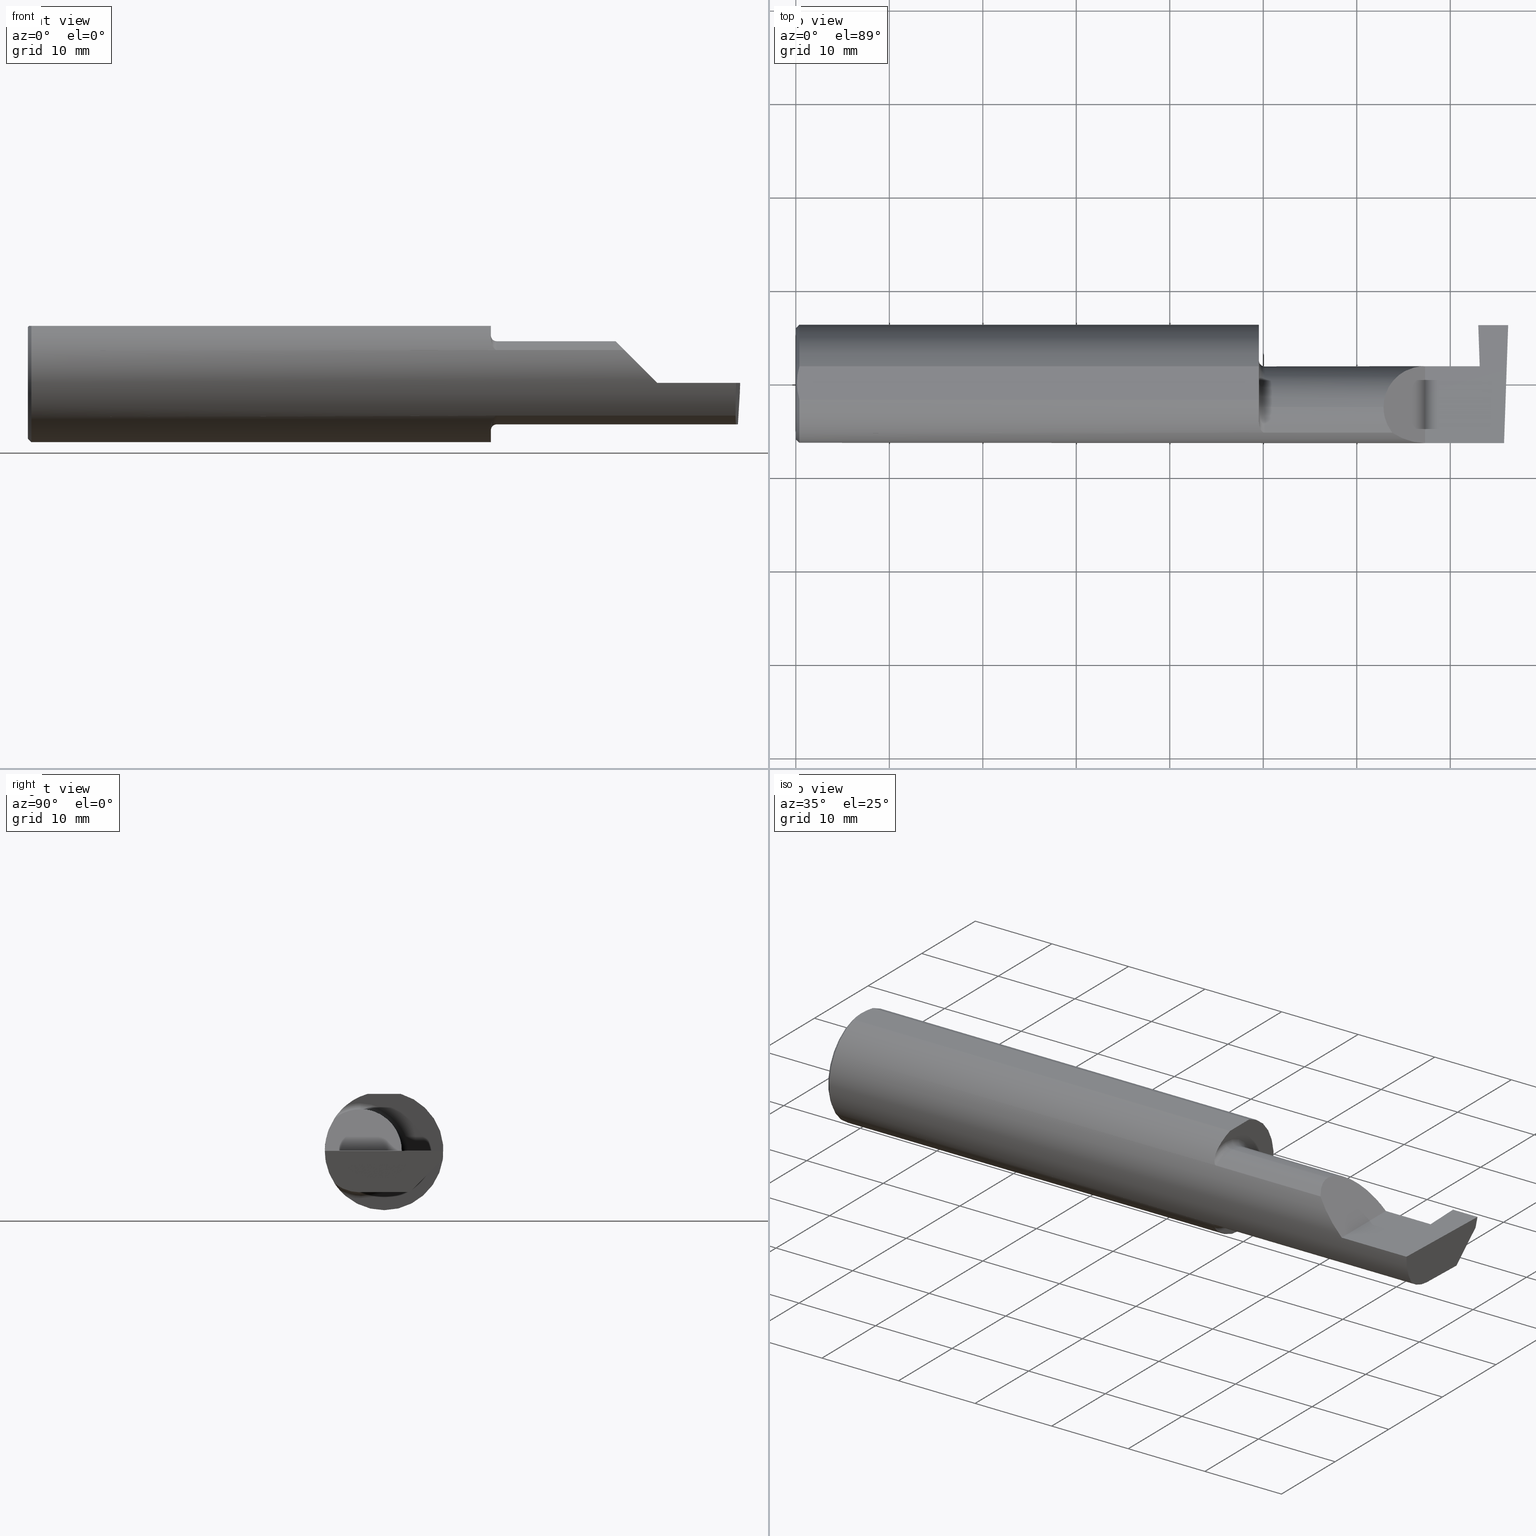
[diagram: canonical four-view strip — front | top / right | iso, engineering-drawing reading convention]
A machine part, canonical four-view strip (front | top / right | iso — engineering-drawing reading convention). The complete STEP part file that produces these views, byte-faithful:
ISO-10303-21;
HEADER;
FILE_DESCRIPTION (( 'STEP AP203' ),
    '1' );
FILE_NAME ('221541-GT125-16.STEP',
    '2024-07-22T22:42:28',
    ( '' ),
    ( '' ),
    'SwSTEP 2.0',
    'SolidWorks 2024',
    '' );
FILE_SCHEMA (( 'CONFIG_CONTROL_DESIGN' ));
ENDSEC;

DATA;
#1 = CARTESIAN_POINT ( 'NONE',  ( 2.885036419112082751, -0.01887343476265496492, -0.1750000000000000444 ) ) ;
#2 = LINE ( 'NONE', #391, #74 ) ;
#3 = ORIENTED_EDGE ( 'NONE', *, *, #271, .F. ) ;
#4 = CC_DESIGN_PERSON_AND_ORGANIZATION_ASSIGNMENT ( #710, #772, ( #718 ) ) ;
#5 = CARTESIAN_POINT ( 'NONE',  ( 2.874000000000000110, 0.07414999999999997982, 1.285877240036560800E-16 ) ) ;
#6 = VECTOR ( 'NONE', #75, 39.37007874015748854 ) ;
#7 = EDGE_CURVE ( 'NONE', #76, #108, #496, .T. ) ;
#8 = AXIS2_PLACEMENT_3D ( 'NONE', #784, #722, #665 ) ;
#9 = ORIENTED_EDGE ( 'NONE', *, *, #570, .T. ) ;
#10 = CARTESIAN_POINT ( 'NONE',  ( 1.951849548162864156, -0.1805300287242674051, 0.1728462070311780896 ) ) ;
#11 = DIRECTION ( 'NONE',  ( 0.9990198516376381788, -5.394573431702560148E-05, 0.04426435500229557868 ) ) ;
#12 = ORIENTED_EDGE ( 'NONE', *, *, #482, .T. ) ;
#13 = CARTESIAN_POINT ( 'NONE',  ( 2.980479240051444378, -0.2080850024789291652, -0.1382955322609665250 ) ) ;
#14 = ORIENTED_EDGE ( 'NONE', *, *, #69, .T. ) ;
#15 = EDGE_CURVE ( 'NONE', #347, #121, #481, .T. ) ;
#16 = PERSON ( 'UNSPECIFIED', 'UNSPECIFIED', 'UNSPECIFIED', ('UNSPECIFIED'), ('UNSPECIFIED'), ('UNSPECIFIED') ) ;
#17 = DIRECTION ( 'NONE',  ( -1.000000000000000000, -0.000000000000000000, -0.000000000000000000 ) ) ;
#18 = CYLINDRICAL_SURFACE ( 'NONE', #484, 0.1749999999999999889 ) ;
#19 = ORIENTED_EDGE ( 'NONE', *, *, #547, .T. ) ;
#20 = VECTOR ( 'NONE', #550, 39.37007874015748854 ) ;
#21 = EDGE_CURVE ( 'NONE', #748, #388, #720, .T. ) ;
#22 = FACE_OUTER_BOUND ( 'NONE', #119, .T. ) ;
#23 = FACE_OUTER_BOUND ( 'NONE', #72, .T. ) ;
#24 = ORIENTED_EDGE ( 'NONE', *, *, #602, .F. ) ;
#25 = CARTESIAN_POINT ( 'NONE',  ( 2.475000000000001421, -0.1008499999999999674, 0.1749999999999999889 ) ) ;
#26 = CARTESIAN_POINT ( 'NONE',  ( 2.885047045968828883, 0.07436332225211045310, -0.1750383420824915270 ) ) ;
#27 = ORIENTED_EDGE ( 'NONE', *, *, #578, .T. ) ;
#28 = EDGE_CURVE ( 'NONE', #205, #546, #428, .T. ) ;
#29 = PERSON_AND_ORGANIZATION ( #16, #526 ) ;
#30 = CARTESIAN_POINT ( 'NONE',  ( 2.880037608447156394, 0.07414999999999993818, 7.345577941662580874E-18 ) ) ;
#31 = ORIENTED_EDGE ( 'NONE', *, *, #21, .F. ) ;
#32 = AXIS2_PLACEMENT_3D ( 'NONE', #557, #299, #243 ) ;
#33 = VECTOR ( 'NONE', #630, 39.37007874015748854 ) ;
#34 = CALENDAR_DATE ( 2024, 22, 7 ) ;
#35 = PLANE ( 'NONE',  #740 ) ;
#36 = ORIENTED_EDGE ( 'NONE', *, *, #724, .T. ) ;
#37 = PERSON_AND_ORGANIZATION ( #16, #526 ) ;
#38 = PLANE ( 'NONE',  #729 ) ;
#39 = ORIENTED_EDGE ( 'NONE', *, *, #46, .F. ) ;
#40 = ORIENTED_EDGE ( 'NONE', *, *, #488, .T. ) ;
#41 = ADVANCED_FACE ( 'NONE', ( #495 ), #774, .T. ) ;
#42 = APPROVAL_DATE_TIME ( #359, #77 ) ;
#43 = CARTESIAN_POINT ( 'NONE',  ( 2.882659707296773011, 0.1742304939701101174, -0.1750000000000000444 ) ) ;
#44 = DIRECTION ( 'NONE',  ( 1.000000000000000000, 0.000000000000000000, 0.000000000000000000 ) ) ;
#45 = ORIENTED_EDGE ( 'NONE', *, *, #322, .F. ) ;
#46 = EDGE_CURVE ( 'NONE', #284, #205, #159, .T. ) ;
#47 = AXIS2_PLACEMENT_3D ( 'NONE', #55, #438, #664 ) ;
#48 = PERSON_AND_ORGANIZATION_ROLE ( 'creator' ) ;
#49 = CC_DESIGN_APPROVAL ( #150, ( #718 ) ) ;
#50 = CARTESIAN_POINT ( 'NONE',  ( 1.975000000000000089, -0.2080850024789292485, 0.1382955322609664972 ) ) ;
#51 = DIRECTION ( 'NONE',  ( 0.000000000000000000, 0.000000000000000000, 1.000000000000000000 ) ) ;
#52 = EDGE_CURVE ( 'NONE', #258, #188, #102, .T. ) ;
#53 = PRODUCT_RELATED_PRODUCT_CATEGORY ( 'detail', '', ( #619 ) ) ;
#54 = DIRECTION ( 'NONE',  ( -0.03489949670249940100, -0.9993908270190957621, 0.000000000000000000 ) ) ;
#55 = CARTESIAN_POINT ( 'NONE',  ( 1.950000000000000178, -0.1008499999999999674, 0.000000000000000000 ) ) ;
#56 = EDGE_LOOP ( 'NONE', ( #624, #632, #764, #380 ) ) ;
#57 = CARTESIAN_POINT ( 'NONE',  ( 2.980479240051444378, -0.2080850024789291652, -0.1382955322609665250 ) ) ;
#58 = FACE_OUTER_BOUND ( 'NONE', #118, .T. ) ;
#59 = ORIENTED_EDGE ( 'NONE', *, *, #375, .F. ) ;
#60 = AXIS2_PLACEMENT_3D ( 'NONE', #106, #727, #490 ) ;
#61 = AXIS2_PLACEMENT_3D ( 'NONE', #165, #111, #420 ) ;
#62 = CARTESIAN_POINT ( 'NONE',  ( 1.950367168219774294, -0.1713400252854603845, 0.1819601557798505576 ) ) ;
#63 = AXIS2_PLACEMENT_3D ( 'NONE', #676, #513, #743 ) ;
#64 = LINE ( 'NONE', #444, #330 ) ;
#65 = ORIENTED_EDGE ( 'NONE', *, *, #654, .F. ) ;
#66 = FACE_OUTER_BOUND ( 'NONE', #202, .T. ) ;
#67 = DIRECTION ( 'NONE',  ( 0.04426435506670335640, 0.000000000000000000, -0.9990198530912830499 ) ) ;
#68 = ORIENTED_EDGE ( 'NONE', *, *, #335, .T. ) ;
#69 = EDGE_CURVE ( 'NONE', #771, #325, #485, .T. ) ;
#70 = CARTESIAN_POINT ( 'NONE',  ( 2.873910470583536103, 0.2476916017116004842, 0.002021285105159276521 ) ) ;
#71 = CARTESIAN_POINT ( 'NONE',  ( 3.000000000000000444, 0.07414999999999991043, 7.431225809576783727E-33 ) ) ;
#72 = EDGE_LOOP ( 'NONE', ( #292, #133, #174, #98, #192, #606, #569, #736, #45, #461, #586, #642, #478, #411 ) ) ;
#73 = CARTESIAN_POINT ( 'NONE',  ( 2.424500000000000099, -0.2080850024789291652, -0.1382955322609665250 ) ) ;
#74 = VECTOR ( 'NONE', #634, 39.37007874015748143 ) ;
#75 = DIRECTION ( 'NONE',  ( 0.02616100201822768243, -0.0009135623211515312911, 0.9996573249755575929 ) ) ;
#76 = VERTEX_POINT ( 'NONE', #310 ) ;
#77 = APPROVAL ( #537, 'UNSPECIFIED' ) ;
#78 =( BOUNDED_CURVE ( )  B_SPLINE_CURVE ( 3, ( #267, #735, #449, #686 ),
 .UNSPECIFIED., .F., .T. ) 
 B_SPLINE_CURVE_WITH_KNOTS ( ( 4, 4 ),
 ( 4.712388980384689674, 5.298966915116346321 ),
 .UNSPECIFIED. ) 
 CURVE ( )  GEOMETRIC_REPRESENTATION_ITEM ( )  RATIONAL_B_SPLINE_CURVE ( ( 1.000000000000000000, 0.9715321379117538569, 0.9715321379117538569, 1.000000000000000000 ) ) 
 REPRESENTATION_ITEM ( '' )  );
#79 = CARTESIAN_POINT ( 'NONE',  ( 1.964302603425052585, -0.2041009206016214661, -0.1441313430770040371 ) ) ;
#80 = EDGE_CURVE ( 'NONE', #226, #88, #446, .T. ) ;
#81 = ORIENTED_EDGE ( 'NONE', *, *, #196, .F. ) ;
#82 = DIRECTION ( 'NONE',  ( -1.000000000000000000, -0.000000000000000000, -0.000000000000000000 ) ) ;
#83 = FACE_OUTER_BOUND ( 'NONE', #659, .T. ) ;
#84 = ORIENTED_EDGE ( 'NONE', *, *, #227, .T. ) ;
#85 = DIRECTION ( 'NONE',  ( 0.000000000000000000, 0.000000000000000000, 1.000000000000000000 ) ) ;
#86 = CARTESIAN_POINT ( 'NONE',  ( 1.950000000000000400, -0.1716188362992556171, -0.1820560320165480195 ) ) ;
#87 = AXIS2_PLACEMENT_3D ( 'NONE', #350, #653, #278 ) ;
#88 = VERTEX_POINT ( 'NONE', #373 ) ;
#89 = AXIS2_PLACEMENT_3D ( 'NONE', #726, #611, #178 ) ;
#90 = DIRECTION ( 'NONE',  ( 0.000000000000000000, 0.000000000000000000, 1.000000000000000000 ) ) ;
#91 = CARTESIAN_POINT ( 'NONE',  ( 3.000000000000000444, 0.07436327552395199936, -0.1750000000000000167 ) ) ;
#92 = ORIENTED_EDGE ( 'NONE', *, *, #255, .T. ) ;
#93 = FACE_OUTER_BOUND ( 'NONE', #745, .T. ) ;
#94 = LINE ( 'NONE', #353, #193 ) ;
#95 = ORIENTED_EDGE ( 'NONE', *, *, #286, .F. ) ;
#96 = PERSON_AND_ORGANIZATION ( #16, #526 ) ;
#97 = DIRECTION ( 'NONE',  ( 0.000000000000000000, 0.000000000000000000, -1.000000000000000000 ) ) ;
#98 = ORIENTED_EDGE ( 'NONE', *, *, #547, .F. ) ;
#99 = VECTOR ( 'NONE', #658, 39.37007874015748854 ) ;
#100 = DATE_AND_TIME ( #480, #777 ) ;
#101 = DIRECTION ( 'NONE',  ( -1.000000000000000000, -0.000000000000000000, -0.000000000000000000 ) ) ;
#102 = LINE ( 'NONE', #605, #561 ) ;
#103 = EDGE_CURVE ( 'NONE', #188, #121, #220, .T. ) ;
#104 = DATE_TIME_ROLE ( 'classification_date' ) ;
#105 = CARTESIAN_POINT ( 'NONE',  ( 2.982644377562602589, -0.2498499999999999610, 1.813681607540488003E-17 ) ) ;
#106 = CARTESIAN_POINT ( 'NONE',  ( 1.975000000000000089, -0.1008499999999999674, 0.000000000000000000 ) ) ;
#107 = ADVANCED_FACE ( 'NONE', ( #366 ), #125, .T. ) ;
#108 = VERTEX_POINT ( 'NONE', #176 ) ;
#109 = MECHANICAL_CONTEXT ( 'NONE', #213, 'mechanical' ) ;
#110 = LINE ( 'NONE', #423, #393 ) ;
#111 = DIRECTION ( 'NONE',  ( 0.000000000000000000, -0.000000000000000000, 1.000000000000000000 ) ) ;
#112 = AXIS2_PLACEMENT_3D ( 'NONE', #627, #257, #384 ) ;
#113 = APPROVAL_STATUS ( 'not_yet_approved' ) ;
#114 = VECTOR ( 'NONE', #437, 39.37007874015748854 ) ;
#115 = LOCAL_TIME ( 15, 42, 28.00000000000000000, #766 ) ;
#116 = FACE_OUTER_BOUND ( 'NONE', #254, .T. ) ;
#117 = CARTESIAN_POINT ( 'NONE',  ( 1.975000000000000089, -0.1008499999999999674, 0.000000000000000000 ) ) ;
#118 = EDGE_LOOP ( 'NONE', ( #137, #751, #553 ) ) ;
#119 = EDGE_LOOP ( 'NONE', ( #274, #502, #68, #780 ) ) ;
#120 = EDGE_CURVE ( 'NONE', #533, #205, #574, .T. ) ;
#121 = VERTEX_POINT ( 'NONE', #555 ) ;
#122 = CARTESIAN_POINT ( 'NONE',  ( 1.950000000000000178, 0.000000000000000000, 0.000000000000000000 ) ) ;
#123 = LINE ( 'NONE', #504, #470 ) ;
#124 = VERTEX_POINT ( 'NONE', #180 ) ;
#125 = CONICAL_SURFACE ( 'NONE', #599, 0.2498499999999999888, 0.7853981633974485010 ) ;
#126 = VECTOR ( 'NONE', #576, 39.37007874015748143 ) ;
#127 = CARTESIAN_POINT ( 'NONE',  ( 1.950000000000000178, -0.1616050818046604332, 0.1905487340154980169 ) ) ;
#128 = DIRECTION ( 'NONE',  ( -0.03487823687206274836, -0.001217974870087560951, 0.9993908270190957621 ) ) ;
#129 = ORIENTED_EDGE ( 'NONE', *, *, #667, .F. ) ;
#130 = ADVANCED_FACE ( 'NONE', ( #312 ), #752, .F. ) ;
#131 = CARTESIAN_POINT ( 'NONE',  ( 1.973329956043143651, -0.2080850024798591991, 0.1382955322595675607 ) ) ;
#132 = LINE ( 'NONE', #71, #587 ) ;
#133 = ORIENTED_EDGE ( 'NONE', *, *, #697, .T. ) ;
#134 = EDGE_CURVE ( 'NONE', #698, #445, #672, .T. ) ;
#135 = CARTESIAN_POINT ( 'NONE',  ( 2.980931506555613453, -0.1771157075472509779, -0.1623092683844330475 ) ) ;
#136 = DIRECTION ( 'NONE',  ( 0.03489949670249940794, 0.9993908270190957621, -4.452728370532699971E-18 ) ) ;
#137 = ORIENTED_EDGE ( 'NONE', *, *, #152, .T. ) ;
#138 = FACE_OUTER_BOUND ( 'NONE', #565, .T. ) ;
#139 = AXIS2_PLACEMENT_3D ( 'NONE', #247, #789, #491 ) ;
#140 = LINE ( 'NONE', #755, #433 ) ;
#141 = AXIS2_PLACEMENT_3D ( 'NONE', #143, #82, #206 ) ;
#142 = ORIENTED_EDGE ( 'NONE', *, *, #566, .T. ) ;
#143 = CARTESIAN_POINT ( 'NONE',  ( 1.950000000000000178, -0.1008499999999999674, 0.000000000000000000 ) ) ;
#144 = FACE_OUTER_BOUND ( 'NONE', #403, .T. ) ;
#145 = ORIENTED_EDGE ( 'NONE', *, *, #271, .T. ) ;
#146 = DIRECTION ( 'NONE',  ( -1.000000000000000000, -0.000000000000000000, -0.000000000000000000 ) ) ;
#147 = CARTESIAN_POINT ( 'NONE',  ( 0.004999999999999471013, 5.665694022114171174E-17, 0.2398500000000000076 ) ) ;
#148 = ORIENTED_EDGE ( 'NONE', *, *, #706, .F. ) ;
#149 = DIRECTION ( 'NONE',  ( -0.000000000000000000, 2.446352684939718220E-16, 1.000000000000000000 ) ) ;
#150 = APPROVAL ( #113, 'UNSPECIFIED' ) ;
#151 = LINE ( 'NONE', #208, #511 ) ;
#152 = EDGE_CURVE ( 'NONE', #595, #363, #499, .T. ) ;
#153 = EDGE_LOOP ( 'NONE', ( #694, #715, #616, #628, #573 ) ) ;
#154 = SECURITY_CLASSIFICATION ( '', '', #422 ) ;
#155 = EDGE_CURVE ( 'NONE', #529, #188, #166, .T. ) ;
#156 = DIRECTION ( 'NONE',  ( 0.06975638345029228082, 0.000000000000000000, -0.9975640565737800003 ) ) ;
#157 = DIRECTION ( 'NONE',  ( -1.000000000000000000, -0.000000000000000000, -0.000000000000000000 ) ) ;
#158 = ORIENTED_EDGE ( 'NONE', *, *, #769, .T. ) ;
#159 = B_SPLINE_CURVE_WITH_KNOTS ( 'NONE', 3,
 ( #543, #661, #730, #238, #613, #184 ),
 .UNSPECIFIED., .F., .F.,
 ( 4, 2, 4 ),
 ( 0.007845223120669342701, 0.008734561288375082555, 0.009623899456080820675 ),
 .UNSPECIFIED. ) ;
#160 =( BOUNDED_CURVE ( )  B_SPLINE_CURVE ( 3, ( #688, #531, #349, #281 ),
 .UNSPECIFIED., .F., .T. ) 
 B_SPLINE_CURVE_WITH_KNOTS ( ( 4, 4 ),
 ( 5.623622464215678463, 6.283185307179586232 ),
 .UNSPECIFIED. ) 
 CURVE ( )  GEOMETRIC_REPRESENTATION_ITEM ( )  RATIONAL_B_SPLINE_CURVE ( ( 1.000000000000000000, 0.9640754331822828371, 0.9640754331822828371, 1.000000000000000000 ) ) 
 REPRESENTATION_ITEM ( '' )  );
#161 = DIRECTION ( 'NONE',  ( 0.7071067811865473507, 8.659560562354935323E-17, 0.7071067811865476838 ) ) ;
#162 = ORIENTED_EDGE ( 'NONE', *, *, #293, .F. ) ;
#163 = EDGE_CURVE ( 'NONE', #388, #645, #379, .T. ) ;
#164 = CARTESIAN_POINT ( 'NONE',  ( 0.004999999999999748569, 0.01185123536186986556, 0.2398500000000000354 ) ) ;
#165 = CARTESIAN_POINT ( 'NONE',  ( 3.000000000000000444, -0.2498499999999999888, 0.2398500000000000076 ) ) ;
#166 = CIRCLE ( 'NONE', #419, 0.1749999999999999889 ) ;
#167 = LOCAL_TIME ( 15, 42, 28.00000000000000000, #610 ) ;
#168 = ORIENTED_EDGE ( 'NONE', *, *, #651, .T. ) ;
#169 = TOROIDAL_SURFACE ( 'NONE', #421, 0.1999999999999999833, 0.02499999999999993547 ) ;
#170 = PERSON_AND_ORGANIZATION ( #16, #526 ) ;
#171 = EDGE_CURVE ( 'NONE', #595, #450, #2, .T. ) ;
#172 = CARTESIAN_POINT ( 'NONE',  ( 2.424500000000000099, -0.2080850024789291652, 0.1382955322609665250 ) ) ;
#173 = DIRECTION ( 'NONE',  ( 0.03487823687994805882, -0.9993915692020550745, -4.023838201466321508E-18 ) ) ;
#174 = ORIENTED_EDGE ( 'NONE', *, *, #242, .T. ) ;
#175 = PLANE ( 'NONE',  #8 ) ;
#176 = CARTESIAN_POINT ( 'NONE',  ( 1.950000000000000178, 0.06997856814768360634, 0.2398500000000000076 ) ) ;
#177 = COORDINATED_UNIVERSAL_TIME_OFFSET ( 8, 0, .BEHIND. ) ;
#178 = DIRECTION ( 'NONE',  ( 0.000000000000000000, 0.000000000000000000, 1.000000000000000000 ) ) ;
#179 = CC_DESIGN_PERSON_AND_ORGANIZATION_ASSIGNMENT ( #37, #48, ( #329 ) ) ;
#180 = CARTESIAN_POINT ( 'NONE',  ( 0.01499999999999998036, 0.06997856814768359246, 0.2398500000000000076 ) ) ;
#181 = ORIENTED_EDGE ( 'NONE', *, *, #651, .F. ) ;
#182 = VECTOR ( 'NONE', #663, 39.37007874015748143 ) ;
#183 = LINE ( 'NONE', #323, #647 ) ;
#184 = CARTESIAN_POINT ( 'NONE',  ( 0.01499999999999999944, -0.06997856814768359246, 0.2398500000000000076 ) ) ;
#185 = ORIENTED_EDGE ( 'NONE', *, *, #69, .F. ) ;
#186 = CARTESIAN_POINT ( 'NONE',  ( 1.975000000000000089, -0.1008499999999999674, 0.000000000000000000 ) ) ;
#187 = PLANE ( 'NONE',  #691 ) ;
#188 = VERTEX_POINT ( 'NONE', #732 ) ;
#189 = DIRECTION ( 'NONE',  ( 1.000000000000000000, 0.000000000000000000, 0.000000000000000000 ) ) ;
#190 = ADVANCED_FACE ( 'NONE', ( #58 ), #622, .F. ) ;
#191 = CARTESIAN_POINT ( 'NONE',  ( 0.01499999999999999944, -0.06997856814768359246, 0.2398500000000000076 ) ) ;
#192 = ORIENTED_EDGE ( 'NONE', *, *, #625, .F. ) ;
#193 = VECTOR ( 'NONE', #211, 39.37007874015748143 ) ;
#194 = AXIS2_PLACEMENT_3D ( 'NONE', #584, #467, #97 ) ;
#195 = DIRECTION ( 'NONE',  ( 1.000000000000000000, 0.000000000000000000, 0.000000000000000000 ) ) ;
#196 = EDGE_CURVE ( 'NONE', #363, #450, #123, .T. ) ;
#197 = CARTESIAN_POINT ( 'NONE',  ( 2.876037492458068723, -2.796095625284332975, -0.04969383453168214893 ) ) ;
#198 = VERTEX_POINT ( 'NONE', #270 ) ;
#199 = ADVANCED_FACE ( 'NONE', ( #518 ), #187, .F. ) ;
#200 = FACE_OUTER_BOUND ( 'NONE', #515, .T. ) ;
#201 = DIRECTION ( 'NONE',  ( -1.000000000000000000, -0.000000000000000000, -0.000000000000000000 ) ) ;
#202 = EDGE_LOOP ( 'NONE', ( #523, #181, #9, #357, #650, #235 ) ) ;
#203 = CARTESIAN_POINT ( 'NONE',  ( 1.950000000000000178, -0.1008499999999999674, 0.000000000000000000 ) ) ;
#204 = CARTESIAN_POINT ( 'NONE',  ( 2.475000000000001421, -0.1008499999999999674, 0.1749999999999999889 ) ) ;
#205 = VERTEX_POINT ( 'NONE', #191 ) ;
#206 = DIRECTION ( 'NONE',  ( 0.000000000000000000, 0.000000000000000000, 1.000000000000000000 ) ) ;
#207 = AXIS2_PLACEMENT_3D ( 'NONE', #197, #11, #67 ) ;
#208 = CARTESIAN_POINT ( 'NONE',  ( 2.650000000000000355, -0.2500000000000000555, 4.286263797015727350E-17 ) ) ;
#209 = AXIS2_PLACEMENT_3D ( 'NONE', #427, #432, #246 ) ;
#210 = ORIENTED_EDGE ( 'NONE', *, *, #488, .F. ) ;
#211 = DIRECTION ( 'NONE',  ( 1.000000000000000000, -0.000000000000000000, -0.000000000000000000 ) ) ;
#212 = ORIENTED_EDGE ( 'NONE', *, *, #482, .F. ) ;
#213 = APPLICATION_CONTEXT ( 'configuration controlled 3d designs of mechanical parts and assemblies' ) ;
#214 = DIRECTION ( 'NONE',  ( 0.000000000000000000, -1.000000000000000000, 2.446352684939718220E-16 ) ) ;
#215 = DIRECTION ( 'NONE',  ( 0.000000000000000000, 0.000000000000000000, 1.000000000000000000 ) ) ;
#216 = EDGE_CURVE ( 'NONE', #325, #639, #132, .T. ) ;
#217 = ORIENTED_EDGE ( 'NONE', *, *, #591, .T. ) ;
#218 = PLANE ( 'NONE',  #497 ) ;
#219 = CYLINDRICAL_SURFACE ( 'NONE', #87, 0.2498499999999999888 ) ;
#220 = CIRCLE ( 'NONE', #60, 0.1749999999999999889 ) ;
#221 = ORIENTED_EDGE ( 'NONE', *, *, #591, .F. ) ;
#222 = CIRCLE ( 'NONE', #304, 0.2498499999999999888 ) ;
#223 =( NAMED_UNIT ( * ) SI_UNIT ( $, .STERADIAN. ) SOLID_ANGLE_UNIT ( ) );
#224 = CC_DESIGN_DATE_AND_TIME_ASSIGNMENT ( #236, #104, ( #154 ) ) ;
#225 = CARTESIAN_POINT ( 'NONE',  ( 1.967611663768900288, -0.2061921161193830399, -0.1411075319999376687 ) ) ;
#226 = VERTEX_POINT ( 'NONE', #327 ) ;
#227 = EDGE_CURVE ( 'NONE', #198, #325, #744, .T. ) ;
#228 = APPROVAL_DATE_TIME ( #717, #305 ) ;
#229 = DIRECTION ( 'NONE',  ( -0.9990483607430196145, 0.03488753751661385211, 0.02617694830785935456 ) ) ;
#230 = EDGE_LOOP ( 'NONE', ( #316, #354, #505, #721, #742, #217, #40, #579 ) ) ;
#231 = DIRECTION ( 'NONE',  ( 0.000000000000000000, -0.2588190451025216277, -0.9659258262890679791 ) ) ;
#232 = DIRECTION ( 'NONE',  ( -1.000000000000000000, -0.000000000000000000, -0.000000000000000000 ) ) ;
#233 = VECTOR ( 'NONE', #337, 39.37007874015748143 ) ;
#234 = CONICAL_SURFACE ( 'NONE', #512, 0.2498499999999999888, 0.7853981633974485010 ) ;
#235 = ORIENTED_EDGE ( 'NONE', *, *, #431, .T. ) ;
#236 = DATE_AND_TIME ( #417, #612 ) ;
#237 = CARTESIAN_POINT ( 'NONE',  ( 2.885047045968828883, 0.1058243371481679823, -0.1749999999999999334 ) ) ;
#238 = CARTESIAN_POINT ( 'NONE',  ( 0.009274236576542580976, -0.04692405468904852633, 0.2398500000000000076 ) ) ;
#239 = APPROVAL_STATUS ( 'not_yet_approved' ) ;
#240 = CC_DESIGN_PERSON_AND_ORGANIZATION_ASSIGNMENT ( #430, #603, ( #619 ) ) ;
#241 = DIRECTION ( 'NONE',  ( 0.000000000000000000, 0.000000000000000000, 1.000000000000000000 ) ) ;
#242 = EDGE_CURVE ( 'NONE', #590, #321, #78, .T. ) ;
#243 = DIRECTION ( 'NONE',  ( 0.000000000000000000, 0.000000000000000000, -1.000000000000000000 ) ) ;
#244 = EDGE_LOOP ( 'NONE', ( #479, #148, #92, #361 ) ) ;
#245 = EDGE_CURVE ( 'NONE', #249, #533, #64, .T. ) ;
#246 = DIRECTION ( 'NONE',  ( 0.000000000000000000, 0.000000000000000000, 1.000000000000000000 ) ) ;
#247 = CARTESIAN_POINT ( 'NONE',  ( 1.975000000000000089, -0.1008499999999999536, -0.1999999999999999833 ) ) ;
#248 =( BOUNDED_CURVE ( )  B_SPLINE_CURVE ( 3, ( #13, #708, #463, #767 ),
 .UNSPECIFIED., .F., .T. ) 
 B_SPLINE_CURVE_WITH_KNOTS ( ( 4, 4 ),
 ( 0.05713034791898994463, 0.6418805321922130824 ),
 .UNSPECIFIED. ) 
 CURVE ( )  GEOMETRIC_REPRESENTATION_ITEM ( )  RATIONAL_B_SPLINE_CURVE ( ( 1.000000000000000000, 0.9717080070095575062, 0.9717080070095575062, 1.000000000000000000 ) ) 
 REPRESENTATION_ITEM ( '' )  );
#249 = VERTEX_POINT ( 'NONE', #320 ) ;
#250 = VECTOR ( 'NONE', #253, 39.37007874015748854 ) ;
#251 = AXIS2_PLACEMENT_3D ( 'NONE', #583, #17, #85 ) ;
#252 = CARTESIAN_POINT ( 'NONE',  ( 1.964343523383979884, -0.2041337200786084161, 0.1440846171672512943 ) ) ;
#253 = DIRECTION ( 'NONE',  ( 8.522090287129319196E-05, 0.9999999963686987403, -2.446351747218456217E-16 ) ) ;
#254 = EDGE_LOOP ( 'NONE', ( #268, #725, #468, #635 ) ) ;
#255 = EDGE_CURVE ( 'NONE', #88, #188, #457, .T. ) ;
#256 = LINE ( 'NONE', #73, #126 ) ;
#257 = DIRECTION ( 'NONE',  ( 0.000000000000000000, -1.000000000000000000, 0.000000000000000000 ) ) ;
#258 = VERTEX_POINT ( 'NONE', #204 ) ;
#259 = EDGE_CURVE ( 'NONE', #445, #263, #324, .T. ) ;
#260 = CARTESIAN_POINT ( 'NONE',  ( 1.950000000000000178, -0.2498499999999999888, 0.2398500000000000076 ) ) ;
#261 = LINE ( 'NONE', #572, #716 ) ;
#262 = ADVANCED_BREP_SHAPE_REPRESENTATION ( '221541-GT125-16', ( #395, #318 ), #358 ) ;
#263 = VERTEX_POINT ( 'NONE', #376 ) ;
#264 = VECTOR ( 'NONE', #296, 39.37007874015748143 ) ;
#265 = CIRCLE ( 'NONE', #539, 0.1999999999999999833 ) ;
#266 = DIRECTION ( 'NONE',  ( 0.000000000000000000, 0.000000000000000000, 1.000000000000000000 ) ) ;
#267 = CARTESIAN_POINT ( 'NONE',  ( 2.650000000000000355, -0.2498499999999999610, 4.286263797015727350E-17 ) ) ;
#268 = ORIENTED_EDGE ( 'NONE', *, *, #317, .T. ) ;
#269 = CARTESIAN_POINT ( 'NONE',  ( 3.000000000000000444, 0.1058243371481678713, -0.1750000000000000167 ) ) ;
#270 = CARTESIAN_POINT ( 'NONE',  ( 2.886145020370094016, 0.07436327552395197160, -0.1750000000000000167 ) ) ;
#271 = EDGE_CURVE ( 'NONE', #771, #263, #261, .T. ) ;
#272 = ORIENTED_EDGE ( 'NONE', *, *, #335, .F. ) ;
#273 = CARTESIAN_POINT ( 'NONE',  ( 1.973318040126430084, -0.2080850024789291097, -0.1382955322609666915 ) ) ;
#274 = ORIENTED_EDGE ( 'NONE', *, *, #629, .T. ) ;
#275 = DIRECTION ( 'NONE',  ( 1.000000000000000000, 0.000000000000000000, 0.000000000000000000 ) ) ;
#276 = VECTOR ( 'NONE', #136, 39.37007874015748143 ) ;
#277 = LOCAL_TIME ( 15, 42, 28.00000000000000000, #177 ) ;
#278 = DIRECTION ( 'NONE',  ( 0.000000000000000000, 0.000000000000000000, 1.000000000000000000 ) ) ;
#279 = DESIGN_CONTEXT ( 'detailed design', #492, 'design' ) ;
#280 = ORIENTED_EDGE ( 'NONE', *, *, #654, .T. ) ;
#281 = CARTESIAN_POINT ( 'NONE',  ( 2.475000000000001421, -0.1008499999999999674, 0.1749999999999999889 ) ) ;
#282 = EDGE_CURVE ( 'NONE', #388, #121, #618, .T. ) ;
#283 = DIRECTION ( 'NONE',  ( -1.000000000000000000, -0.000000000000000000, -0.000000000000000000 ) ) ;
#284 = VERTEX_POINT ( 'NONE', #147 ) ;
#285 = DIRECTION ( 'NONE',  ( 0.000000000000000000, 0.000000000000000000, -1.000000000000000000 ) ) ;
#286 = EDGE_CURVE ( 'NONE', #712, #698, #248, .T. ) ;
#287 = DIRECTION ( 'NONE',  ( 0.06975643500179386225, 0.001215747646129009549, -0.9975633121428941763 ) ) ;
#288 = ORIENTED_EDGE ( 'NONE', *, *, #342, .F. ) ;
#289 = EDGE_CURVE ( 'NONE', #439, #76, #493, .T. ) ;
#290 = COORDINATED_UNIVERSAL_TIME_OFFSET ( 8, 0, .BEHIND. ) ;
#291 = LINE ( 'NONE', #26, #405 ) ;
#292 = ORIENTED_EDGE ( 'NONE', *, *, #134, .T. ) ;
#293 = EDGE_CURVE ( 'NONE', #645, #198, #532, .T. ) ;
#294 = SHAPE_DEFINITION_REPRESENTATION ( #440, #262 ) ;
#295 = CARTESIAN_POINT ( 'NONE',  ( 0.01499999999999998036, 0.06997856814768359246, 0.2398500000000000076 ) ) ;
#296 = DIRECTION ( 'NONE',  ( 1.000000000000000000, 0.000000000000000000, 0.000000000000000000 ) ) ;
#297 = CARTESIAN_POINT ( 'NONE',  ( 0.000000000000000000, 0.000000000000000000, 0.000000000000000000 ) ) ;
#298 = FACE_OUTER_BOUND ( 'NONE', #435, .T. ) ;
#299 = DIRECTION ( 'NONE',  ( 1.000000000000000000, 0.000000000000000000, 0.000000000000000000 ) ) ;
#300 = APPROVAL_ROLE ( '' ) ;
#301 = CARTESIAN_POINT ( 'NONE',  ( 2.650000000000000355, -0.2500000000000000555, 4.286263797015727350E-17 ) ) ;
#302 = DIRECTION ( 'NONE',  ( 0.000000000000000000, 0.000000000000000000, -1.000000000000000000 ) ) ;
#303 = CIRCLE ( 'NONE', #738, 0.2498499999999999888 ) ;
#304 = AXIS2_PLACEMENT_3D ( 'NONE', #122, #195, #507 ) ;
#305 = APPROVAL ( #239, 'UNSPECIFIED' ) ;
#306 = ADVANCED_FACE ( 'NONE', ( #23 ), #219, .T. ) ;
#307 = APPLICATION_PROTOCOL_DEFINITION ( 'international standard', 'config_control_design', 1994, #492 ) ;
#308 = EDGE_CURVE ( 'NONE', #121, #439, #344, .T. ) ;
#309 = CARTESIAN_POINT ( 'NONE',  ( 2.825000000000000178, 0.2471500000000000086, -3.306546357697639493E-19 ) ) ;
#310 = CARTESIAN_POINT ( 'NONE',  ( 1.950000000000000178, -0.1616050818046604332, -0.1905487340154980169 ) ) ;
#311 = FACE_OUTER_BOUND ( 'NONE', #678, .T. ) ;
#312 = FACE_OUTER_BOUND ( 'NONE', #56, .T. ) ;
#313 = ORIENTED_EDGE ( 'NONE', *, *, #667, .T. ) ;
#314 = LINE ( 'NONE', #443, #704 ) ;
#315 = CARTESIAN_POINT ( 'NONE',  ( 1.950000000000000178, -0.1008499999999999536, -0.1749999999999999889 ) ) ;
#316 = ORIENTED_EDGE ( 'NONE', *, *, #629, .F. ) ;
#317 = EDGE_CURVE ( 'NONE', #392, #465, #94, .T. ) ;
#318 = AXIS2_PLACEMENT_3D ( 'NONE', #297, #426, #413 ) ;
#319 = FACE_OUTER_BOUND ( 'NONE', #615, .T. ) ;
#320 = CARTESIAN_POINT ( 'NONE',  ( 0.000000000000000000, 0.000000000000000000, -0.2348499999999999754 ) ) ;
#321 = VERTEX_POINT ( 'NONE', #750 ) ;
#322 = EDGE_CURVE ( 'NONE', #124, #533, #303, .T. ) ;
#323 = CARTESIAN_POINT ( 'NONE',  ( 1.950000000000000178, 0.07414999999999997982, 1.285879139104718760E-16 ) ) ;
#324 = LINE ( 'NONE', #455, #276 ) ;
#325 = VERTEX_POINT ( 'NONE', #30 ) ;
#326 = CARTESIAN_POINT ( 'NONE',  ( 1.975000000000000089, -0.2080850024789292485, 0.1382955322609664972 ) ) ;
#327 = CARTESIAN_POINT ( 'NONE',  ( 1.950000000000000178, -0.1616050818046604332, 0.1905487340154980169 ) ) ;
#328 = EDGE_LOOP ( 'NONE', ( #702, #781, #3, #14, #367, #221, #288 ) ) ;
#329 = PRODUCT_DEFINITION ( 'UNKNOWN', '', #718, #279 ) ;
#330 = VECTOR ( 'NONE', #681, 39.37007874015748143 ) ;
#331 = CIRCLE ( 'NONE', #251, 0.2348499999999999754 ) ;
#332 = LINE ( 'NONE', #260, #434 ) ;
#333 = CARTESIAN_POINT ( 'NONE',  ( 2.885053225427432810, 0.1783354039560729742, -0.1750000000000000444 ) ) ;
#334 = ORIENTED_EDGE ( 'NONE', *, *, #245, .T. ) ;
#335 = EDGE_CURVE ( 'NONE', #450, #645, #291, .T. ) ;
#336 = CARTESIAN_POINT ( 'NONE',  ( 2.875913319069796525, 0.2366022684371985318, -0.04422206871096982100 ) ) ;
#337 = DIRECTION ( 'NONE',  ( 1.000000000000000000, 1.870497743706911121E-16, -4.575890381050107109E-32 ) ) ;
#338 = ORIENTED_EDGE ( 'NONE', *, *, #163, .T. ) ;
#339 = CARTESIAN_POINT ( 'NONE',  ( 2.547487373415292744, 0.07414999999999996594, 0.1025126265847083745 ) ) ;
#340 = PLANE ( 'NONE',  #194 ) ;
#341 = ORIENTED_EDGE ( 'NONE', *, *, #578, .F. ) ;
#342 = EDGE_CURVE ( 'NONE', #590, #408, #151, .T. ) ;
#343 = CARTESIAN_POINT ( 'NONE',  ( 2.650000000000000355, 0.07414999999999997982, 4.286263797015727350E-17 ) ) ;
#344 = CIRCLE ( 'NONE', #549, 0.1749999999999999889 ) ;
#345 = AXIS2_PLACEMENT_3D ( 'NONE', #581, #394, #460 ) ;
#346 = CARTESIAN_POINT ( 'NONE',  ( 1.975000000000000089, -0.1008499999999999674, 0.000000000000000000 ) ) ;
#347 = VERTEX_POINT ( 'NONE', #475 ) ;
#348 = EDGE_CURVE ( 'NONE', #108, #124, #140, .T. ) ;
#349 = CARTESIAN_POINT ( 'NONE',  ( 2.475000000000001421, -0.1400387324517231857, 0.1750000000000000167 ) ) ;
#350 = CARTESIAN_POINT ( 'NONE',  ( 0.000000000000000000, 0.000000000000000000, 0.000000000000000000 ) ) ;
#351 = ORIENTED_EDGE ( 'NONE', *, *, #227, .F. ) ;
#352 = LINE ( 'NONE', #695, #471 ) ;
#353 = CARTESIAN_POINT ( 'NONE',  ( 2.825000000000000178, 0.2348243371481683328, -0.04599999999999999922 ) ) ;
#354 = ORIENTED_EDGE ( 'NONE', *, *, #282, .T. ) ;
#355 = PERSON_AND_ORGANIZATION_ROLE ( 'classification_officer' ) ;
#356 = DIRECTION ( 'NONE',  ( 0.000000000000000000, -0.7071067811865486830, -0.7071067811865463515 ) ) ;
#357 = ORIENTED_EDGE ( 'NONE', *, *, #80, .T. ) ;
#358 =( GEOMETRIC_REPRESENTATION_CONTEXT ( 3 ) GLOBAL_UNCERTAINTY_ASSIGNED_CONTEXT ( ( #585 ) ) GLOBAL_UNIT_ASSIGNED_CONTEXT ( ( #459, #462, #223 ) ) REPRESENTATION_CONTEXT ( 'NONE', 'WORKASPACE' ) );
#359 = DATE_AND_TIME ( #34, #115 ) ;
#360 = CARTESIAN_POINT ( 'NONE',  ( 1.975000000000000089, -0.2080850024789291375, -0.1382955322609665805 ) ) ;
#361 = ORIENTED_EDGE ( 'NONE', *, *, #103, .T. ) ;
#362 =( BOUNDED_CURVE ( )  B_SPLINE_CURVE ( 3, ( #679, #1, #448, #571 ),
 .UNSPECIFIED., .F., .T. ) 
 B_SPLINE_CURVE_WITH_KNOTS ( ( 4, 4 ),
 ( 3.140373936913444908, 4.443983221546777607 ),
 .UNSPECIFIED. ) 
 CURVE ( )  GEOMETRIC_REPRESENTATION_ITEM ( )  RATIONAL_B_SPLINE_CURVE ( ( 1.000000000000000000, 0.8633269052189371795, 0.8633269052189371795, 1.000000000000000000 ) ) 
 REPRESENTATION_ITEM ( '' )  );
#363 = VERTEX_POINT ( 'NONE', #472 ) ;
#364 = PERSON_AND_ORGANIZATION_ROLE ( 'design_supplier' ) ;
#365 = LINE ( 'NONE', #43, #20 ) ;
#366 = FACE_OUTER_BOUND ( 'NONE', #153, .T. ) ;
#367 = ORIENTED_EDGE ( 'NONE', *, *, #216, .T. ) ;
#368 = CARTESIAN_POINT ( 'NONE',  ( 2.999793790066964672, 0.2455961323656265238, -0.005799112959718751882 ) ) ;
#369 = CARTESIAN_POINT ( 'NONE',  ( 2.891482443365339439, -0.2537872052982785287, 1.328956783839287718E-17 ) ) ;
#370 = AXIS2_PLACEMENT_3D ( 'NONE', #301, #713, #418 ) ;
#371 = APPROVAL_ROLE ( '' ) ;
#372 = CARTESIAN_POINT ( 'NONE',  ( 0.004999999999999471013, 5.665694022114171174E-17, 0.2398500000000000076 ) ) ;
#373 = CARTESIAN_POINT ( 'NONE',  ( 1.950000000000000178, -0.1008499999999999674, 0.1999999999999999833 ) ) ;
#374 = CARTESIAN_POINT ( 'NONE',  ( 1.952968662030529323, -0.1849684355203378705, 0.1680843977756267815 ) ) ;
#375 = EDGE_CURVE ( 'NONE', #249, #790, #538, .T. ) ;
#376 = CARTESIAN_POINT ( 'NONE',  ( 3.000000000000000444, 0.2471499999999999531, -7.549931466865102584E-16 ) ) ;
#377 = ORIENTED_EDGE ( 'NONE', *, *, #759, .F. ) ;
#378 = LINE ( 'NONE', #728, #114 ) ;
#379 = LINE ( 'NONE', #333, #250 ) ;
#380 = ORIENTED_EDGE ( 'NONE', *, *, #155, .T. ) ;
#381 = VECTOR ( 'NONE', #157, 39.37007874015748143 ) ;
#382 = APPROVAL_PERSON_ORGANIZATION ( #548, #150, #371 ) ;
#383 = CARTESIAN_POINT ( 'NONE',  ( 2.650000000000000355, -0.2498499999999999610, 4.286263797015727350E-17 ) ) ;
#384 = DIRECTION ( 'NONE',  ( 0.000000000000000000, 0.000000000000000000, -1.000000000000000000 ) ) ;
#385 = ORIENTED_EDGE ( 'NONE', *, *, #242, .F. ) ;
#386 = DIRECTION ( 'NONE',  ( -1.000000000000000000, -0.000000000000000000, -0.000000000000000000 ) ) ;
#387 = DIRECTION ( 'NONE',  ( -1.000000000000000000, 0.000000000000000000, 1.224646799147351482E-16 ) ) ;
#388 = VERTEX_POINT ( 'NONE', #638 ) ;
#389 =( BOUNDED_CURVE ( )  B_SPLINE_CURVE ( 3, ( #25, #692, #339, #343 ),
 .UNSPECIFIED., .F., .T. ) 
 B_SPLINE_CURVE_WITH_KNOTS ( ( 4, 4 ),
 ( 0.000000000000000000, 1.570796326794896558 ),
 .UNSPECIFIED. ) 
 CURVE ( )  GEOMETRIC_REPRESENTATION_ITEM ( )  RATIONAL_B_SPLINE_CURVE ( ( 1.000000000000000000, 0.8047378541243649375, 0.8047378541243649375, 1.000000000000000000 ) ) 
 REPRESENTATION_ITEM ( '' )  );
#390 = CARTESIAN_POINT ( 'NONE',  ( 2.983262242683407006, -0.1008499999999999674, -0.1749999999999999889 ) ) ;
#391 = CARTESIAN_POINT ( 'NONE',  ( 2.876037492458068723, -2.796095625284332975, -0.04969383453168214893 ) ) ;
#392 = VERTEX_POINT ( 'NONE', #693 ) ;
#393 = VECTOR ( 'NONE', #161, 39.37007874015748143 ) ;
#394 = DIRECTION ( 'NONE',  ( -1.000000000000000000, -0.000000000000000000, -0.000000000000000000 ) ) ;
#395 = MANIFOLD_SOLID_BREP ( 'Front Angle', #669 ) ;
#396 = ORIENTED_EDGE ( 'NONE', *, *, #52, .T. ) ;
#397 = CARTESIAN_POINT ( 'NONE',  ( 2.980479240051444378, -0.2080850024789291652, -0.1382955322609665250 ) ) ;
#398 = CARTESIAN_POINT ( 'NONE',  ( 1.950000000000000178, -0.1008499999999999674, 0.000000000000000000 ) ) ;
#399 = ORIENTED_EDGE ( 'NONE', *, *, #701, .T. ) ;
#400 = CARTESIAN_POINT ( 'NONE',  ( 2.982632426700501327, -0.2498495826666993214, -0.0004566631977791965049 ) ) ;
#401 = CARTESIAN_POINT ( 'NONE',  ( 1.958176740666625726, -0.1972027065478073327, -0.1535263573771913914 ) ) ;
#402 = ADVANCED_FACE ( 'NONE', ( #144 ), #18, .T. ) ;
#403 = EDGE_LOOP ( 'NONE', ( #399, #396, #424, #19 ) ) ;
#404 = CYLINDRICAL_SURFACE ( 'NONE', #636, 0.1749999999999999889 ) ;
#405 = VECTOR ( 'NONE', #287, 39.37007874015748854 ) ;
#406 = VECTOR ( 'NONE', #699, 39.37007874015748143 ) ;
#407 = CARTESIAN_POINT ( 'NONE',  ( 1.950000000000000178, -0.1616050818046604332, -0.1905487340154980169 ) ) ;
#408 = VERTEX_POINT ( 'NONE', #589 ) ;
#409 = CARTESIAN_POINT ( 'NONE',  ( 0.000000000000000000, 2.967931517733610643E-17, 0.2348499999999999754 ) ) ;
#410 = CARTESIAN_POINT ( 'NONE',  ( 1.971700027347579098, -0.2077785947292768443, -0.1387580622202825575 ) ) ;
#411 = ORIENTED_EDGE ( 'NONE', *, *, #286, .T. ) ;
#412 = ADVANCED_FACE ( 'NONE', ( #83 ), #340, .F. ) ;
#413 = DIRECTION ( 'NONE',  ( 1.000000000000000000, 0.000000000000000000, 0.000000000000000000 ) ) ;
#414 = FACE_OUTER_BOUND ( 'NONE', #244, .T. ) ;
#415 = ADVANCED_FACE ( 'NONE', ( #116 ), #38, .F. ) ;
#416 = EDGE_LOOP ( 'NONE', ( #675, #168, #476, #541, #756 ) ) ;
#417 = CALENDAR_DATE ( 2024, 22, 7 ) ;
#418 = DIRECTION ( 'NONE',  ( -0.7071067811865454633, 0.000000000000000000, 0.7071067811865495711 ) ) ;
#419 = AXIS2_PLACEMENT_3D ( 'NONE', #739, #201, #794 ) ;
#420 = DIRECTION ( 'NONE',  ( 1.000000000000000000, 0.000000000000000000, -0.000000000000000000 ) ) ;
#421 = AXIS2_PLACEMENT_3D ( 'NONE', #186, #386, #266 ) ;
#422 = SECURITY_CLASSIFICATION_LEVEL ( 'unclassified' ) ;
#423 = CARTESIAN_POINT ( 'NONE',  ( 0.01499999999999999944, 3.059780027669661931E-17, 0.2498499999999999888 ) ) ;
#424 = ORIENTED_EDGE ( 'NONE', *, *, #155, .F. ) ;
#425 = DIMENSIONAL_EXPONENTS ( 1.000000000000000000, 0.000000000000000000, 0.000000000000000000, 0.000000000000000000, 0.000000000000000000, 0.000000000000000000, 0.000000000000000000 ) ;
#426 = DIRECTION ( 'NONE',  ( 0.000000000000000000, 0.000000000000000000, 1.000000000000000000 ) ) ;
#427 = CARTESIAN_POINT ( 'NONE',  ( 1.975000000000000089, -0.1008499999999999674, 0.000000000000000000 ) ) ;
#428 = LINE ( 'NONE', #714, #264 ) ;
#429 = ADVANCED_FACE ( 'NONE', ( #414 ), #588, .F. ) ;
#430 = PERSON_AND_ORGANIZATION ( #16, #526 ) ;
#431 = EDGE_CURVE ( 'NONE', #347, #76, #265, .T. ) ;
#432 = DIRECTION ( 'NONE',  ( -1.000000000000000000, -0.000000000000000000, -0.000000000000000000 ) ) ;
#433 = VECTOR ( 'NONE', #700, 39.37007874015748143 ) ;
#434 = VECTOR ( 'NONE', #452, 39.37007874015748143 ) ;
#435 = EDGE_LOOP ( 'NONE', ( #341, #377, #761, #84, #185 ) ) ;
#436 = ADVANCED_FACE ( 'NONE', ( #298 ), #175, .F. ) ;
#437 = DIRECTION ( 'NONE',  ( -0.03489949670249939406, -0.9993908270190957621, 2.445004146800612422E-16 ) ) ;
#438 = DIRECTION ( 'NONE',  ( -1.000000000000000000, -0.000000000000000000, -0.000000000000000000 ) ) ;
#439 = VERTEX_POINT ( 'NONE', #360 ) ;
#440 = PRODUCT_DEFINITION_SHAPE ( 'NONE', 'NONE',  #329 ) ;
#441 = CARTESIAN_POINT ( 'NONE',  ( 2.887013260303944229, 0.07439359513054549788, -0.1998782938404957410 ) ) ;
#442 = VERTEX_POINT ( 'NONE', #711 ) ;
#443 = CARTESIAN_POINT ( 'NONE',  ( 2.998041052908566595, 0.2295359730721147906, -0.05128836407605352060 ) ) ;
#444 = CARTESIAN_POINT ( 'NONE',  ( 0.01499999999999999944, 0.000000000000000000, -0.2498499999999999888 ) ) ;
#445 = VERTEX_POINT ( 'NONE', #105 ) ;
#446 = CIRCLE ( 'NONE', #47, 0.1999999999999999833 ) ;
#447 = CIRCLE ( 'NONE', #89, 0.1749999999999999889 ) ;
#448 = CARTESIAN_POINT ( 'NONE',  ( 2.881564601548837423, 0.04629714416892564965, -0.1252712066320194051 ) ) ;
#449 = CARTESIAN_POINT ( 'NONE',  ( 2.552984868485333347, -0.2355204011147992438, 0.09701513151466735485 ) ) ;
#450 = VERTEX_POINT ( 'NONE', #554 ) ;
#451 = EDGE_CURVE ( 'NONE', #790, #284, #110, .T. ) ;
#452 = DIRECTION ( 'NONE',  ( -0.000000000000000000, 1.000000000000000000, 0.000000000000000000 ) ) ;
#453 = ORIENTED_EDGE ( 'NONE', *, *, #701, .F. ) ;
#454 = FACE_OUTER_BOUND ( 'NONE', #230, .T. ) ;
#455 = CARTESIAN_POINT ( 'NONE',  ( 2.982660284539054629, -0.2493944837933358694, 2.123502703737254632E-18 ) ) ;
#456 = VERTEX_POINT ( 'NONE', #237 ) ;
#457 = CIRCLE ( 'NONE', #112, 0.02499999999999993894 ) ;
#458 = AXIS2_PLACEMENT_3D ( 'NONE', #563, #795, #503 ) ;
#459 =( CONVERSION_BASED_UNIT ( 'INCH', #749 ) LENGTH_UNIT ( ) NAMED_UNIT ( #425 ) );
#460 = DIRECTION ( 'NONE',  ( 0.000000000000000000, 0.000000000000000000, 1.000000000000000000 ) ) ;
#461 = ORIENTED_EDGE ( 'NONE', *, *, #348, .F. ) ;
#462 =( NAMED_UNIT ( * ) PLANE_ANGLE_UNIT ( ) SI_UNIT ( $, .RADIAN. ) );
#463 = CARTESIAN_POINT ( 'NONE',  ( 2.981341028891337785, -0.2497592792593336664, -0.04986346618389509572 ) ) ;
#464 = B_SPLINE_CURVE_WITH_KNOTS ( 'NONE', 3,
 ( #295, #670, #542, #600, #164, #372 ),
 .UNSPECIFIED., .F., .F.,
 ( 4, 2, 4 ),
 ( 0.006064768674679249863, 0.006954995897674296282, 0.007845223120669342701 ),
 .UNSPECIFIED. ) ;
#465 = VERTEX_POINT ( 'NONE', #604 ) ;
#466 = LINE ( 'NONE', #336, #406 ) ;
#467 = DIRECTION ( 'NONE',  ( 1.000000000000000000, 0.000000000000000000, 0.000000000000000000 ) ) ;
#468 = ORIENTED_EDGE ( 'NONE', *, *, #724, .F. ) ;
#469 = CARTESIAN_POINT ( 'NONE',  ( 2.885047045968829327, -2.795938602588532884, -0.1785364286363248232 ) ) ;
#470 = VECTOR ( 'NONE', #631, 39.37007874015748854 ) ;
#471 = VECTOR ( 'NONE', #146, 39.37007874015748143 ) ;
#472 = CARTESIAN_POINT ( 'NONE',  ( 2.874000000000000110, 0.07414987299205305638, -0.0002108382441793307837 ) ) ;
#473 = EDGE_LOOP ( 'NONE', ( #145, #12, #486, #27 ) ) ;
#474 = CALENDAR_DATE ( 2024, 22, 7 ) ;
#475 = CARTESIAN_POINT ( 'NONE',  ( 1.950000000000000178, -0.1008499999999999536, -0.1999999999999999833 ) ) ;
#476 = ORIENTED_EDGE ( 'NONE', *, *, #348, .T. ) ;
#477 = PLANE ( 'NONE',  #370 ) ;
#478 = ORIENTED_EDGE ( 'NONE', *, *, #657, .F. ) ;
#479 = ORIENTED_EDGE ( 'NONE', *, *, #15, .F. ) ;
#480 = CALENDAR_DATE ( 2024, 22, 7 ) ;
#481 = CIRCLE ( 'NONE', #139, 0.02499999999999993894 ) ;
#482 = EDGE_CURVE ( 'NONE', #263, #465, #489, .T. ) ;
#483 = CARTESIAN_POINT ( 'NONE',  ( 1.950000000000000178, -0.06997856814768374512, 0.2398500000000000076 ) ) ;
#484 = AXIS2_PLACEMENT_3D ( 'NONE', #398, #760, #641 ) ;
#485 = LINE ( 'NONE', #369, #792 ) ;
#486 = ORIENTED_EDGE ( 'NONE', *, *, #317, .F. ) ;
#487 = PERSON_AND_ORGANIZATION ( #16, #526 ) ;
#488 = EDGE_CURVE ( 'NONE', #639, #363, #447, .T. ) ;
#489 = LINE ( 'NONE', #368, #99 ) ;
#490 = DIRECTION ( 'NONE',  ( 0.000000000000000000, 0.000000000000000000, 1.000000000000000000 ) ) ;
#491 = DIRECTION ( 'NONE',  ( 0.000000000000000000, 0.000000000000000000, 1.000000000000000000 ) ) ;
#492 = APPLICATION_CONTEXT ( 'configuration controlled 3d designs of mechanical parts and assemblies' ) ;
#493 = B_SPLINE_CURVE_WITH_KNOTS ( 'NONE', 3,
 ( #649, #273, #410, #696, #225, #79, #644, #401, #535, #522, #86, #407 ),
 .UNSPECIFIED., .F., .F.,
 ( 4, 2, 2, 2, 2, 4 ),
 ( 1.964491429041408350E-07, 0.0001260981470478295585, 0.0002519998449527549372, 0.0005038032407626189760, 0.001007410032382346837, 0.002014623615621808413 ),
 .UNSPECIFIED. ) ;
#494 = PLANE ( 'NONE',  #63 ) ;
#495 = FACE_OUTER_BOUND ( 'NONE', #416, .T. ) ;
#496 = CIRCLE ( 'NONE', #32, 0.2498499999999999888 ) ;
#497 = AXIS2_PLACEMENT_3D ( 'NONE', #469, #707, #156 ) ;
#498 = APPROVAL_PERSON_ORGANIZATION ( #487, #77, #598 ) ;
#499 =( BOUNDED_CURVE ( )  B_SPLINE_CURVE ( 3, ( #564, #560, #684, #501 ),
 .UNSPECIFIED., .F., .T. ) 
 B_SPLINE_CURVE_WITH_KNOTS ( ( 4, 4 ),
 ( 4.443983221546778495, 4.709965478757016655 ),
 .UNSPECIFIED. ) 
 CURVE ( )  GEOMETRIC_REPRESENTATION_ITEM ( )  RATIONAL_B_SPLINE_CURVE ( ( 1.000000000000000000, 0.9941131374841131185, 0.9941131374841131185, 1.000000000000000000 ) ) 
 REPRESENTATION_ITEM ( '' )  );
#500 = CARTESIAN_POINT ( 'NONE',  ( 1.971718393013769388, -0.2077830475237242291, 0.1387513848711937614 ) ) ;
#501 = CARTESIAN_POINT ( 'NONE',  ( 2.874000000000000110, 0.07414987299205305638, -0.0002108382441793307837 ) ) ;
#502 = ORIENTED_EDGE ( 'NONE', *, *, #171, .T. ) ;
#503 = DIRECTION ( 'NONE',  ( 0.000000000000000000, 0.001218716374663524277, -0.9999992573649232330 ) ) ;
#504 = CARTESIAN_POINT ( 'NONE',  ( 2.876037492458068279, 0.07420629955631043162, -0.04619574797784884584 ) ) ;
#505 = ORIENTED_EDGE ( 'NONE', *, *, #103, .F. ) ;
#506 = CC_DESIGN_DATE_AND_TIME_ASSIGNMENT ( #668, #662, ( #329 ) ) ;
#507 = DIRECTION ( 'NONE',  ( 0.000000000000000000, 0.000000000000000000, -1.000000000000000000 ) ) ;
#508 = EDGE_CURVE ( 'NONE', #124, #284, #464, .T. ) ;
#509 = DIRECTION ( 'NONE',  ( 1.000000000000000000, -0.000000000000000000, -0.000000000000000000 ) ) ;
#510 = ORIENTED_EDGE ( 'NONE', *, *, #451, .F. ) ;
#511 = VECTOR ( 'NONE', #540, 39.37007874015748143 ) ;
#512 = AXIS2_PLACEMENT_3D ( 'NONE', #517, #275, #285 ) ;
#513 = DIRECTION ( 'NONE',  ( 1.000000000000000000, 0.000000000000000000, 0.000000000000000000 ) ) ;
#514 = DIRECTION ( 'NONE',  ( -1.000000000000000000, -1.871990241922592797E-16, 1.224646799147351482E-16 ) ) ;
#515 = EDGE_LOOP ( 'NONE', ( #798, #655, #685, #582 ) ) ;
#516 = CC_DESIGN_PERSON_AND_ORGANIZATION_ASSIGNMENT ( #170, #364, ( #718 ) ) ;
#517 = CARTESIAN_POINT ( 'NONE',  ( 0.01499999999999999944, 0.000000000000000000, 0.000000000000000000 ) ) ;
#518 = FACE_OUTER_BOUND ( 'NONE', #328, .T. ) ;
#519 = ORIENTED_EDGE ( 'NONE', *, *, #657, .T. ) ;
#520 = ADVANCED_FACE ( 'NONE', ( #614 ), #35, .F. ) ;
#521 = DIRECTION ( 'NONE',  ( -1.000000000000000000, -0.000000000000000000, -0.000000000000000000 ) ) ;
#522 = CARTESIAN_POINT ( 'NONE',  ( 1.951385488563270432, -0.1808287530430325862, -0.1728790649396287349 ) ) ;
#523 = ORIENTED_EDGE ( 'NONE', *, *, #7, .T. ) ;
#524 = AXIS2_PLACEMENT_3D ( 'NONE', #117, #796, #689 ) ;
#525 = APPROVAL_PERSON_ORGANIZATION ( #96, #305, #300 ) ;
#526 = ORGANIZATION ( 'UNSPECIFIED', 'UNSPECIFIED', '' ) ;
#527 = DIRECTION ( 'NONE',  ( 0.000000000000000000, 0.000000000000000000, 1.000000000000000000 ) ) ;
#528 = CARTESIAN_POINT ( 'NONE',  ( 0.01499999999999999944, 0.000000000000000000, 0.000000000000000000 ) ) ;
#529 = VERTEX_POINT ( 'NONE', #50 ) ;
#530 = ADVANCED_FACE ( 'NONE', ( #311 ), #477, .F. ) ;
#531 = CARTESIAN_POINT ( 'NONE',  ( 2.487690731615568307, -0.1771157075472510889, 0.1623092683844330197 ) ) ;
#532 = LINE ( 'NONE', #91, #233 ) ;
#533 = VERTEX_POINT ( 'NONE', #660 ) ;
#534 = DIRECTION ( 'NONE',  ( 1.000000000000000000, 0.000000000000000000, 0.000000000000000000 ) ) ;
#535 = CARTESIAN_POINT ( 'NONE',  ( 1.956147634408387459, -0.1932733126899460752, -0.1584637047788197417 ) ) ;
#536 = EDGE_LOOP ( 'NONE', ( #280, #129, #24, #212, #682, #709, #95 ) ) ;
#537 = APPROVAL_STATUS ( 'not_yet_approved' ) ;
#538 = CIRCLE ( 'NONE', #345, 0.2348499999999999754 ) ;
#539 = AXIS2_PLACEMENT_3D ( 'NONE', #770, #101, #241 ) ;
#540 = DIRECTION ( 'NONE',  ( -0.000000000000000000, 1.000000000000000000, -0.000000000000000000 ) ) ;
#541 = ORIENTED_EDGE ( 'NONE', *, *, #508, .T. ) ;
#542 = CARTESIAN_POINT ( 'NONE',  ( 0.009312860630924745670, 0.04712480857212029278, 0.2398500000000000354 ) ) ;
#543 = CARTESIAN_POINT ( 'NONE',  ( 0.004999999999999471013, 5.665694022114171174E-17, 0.2398500000000000076 ) ) ;
#544 = ADVANCED_FACE ( 'NONE', ( #556 ), #545, .F. ) ;
#545 = PLANE ( 'NONE',  #753 ) ;
#546 = VERTEX_POINT ( 'NONE', #483 ) ;
#547 = EDGE_CURVE ( 'NONE', #529, #321, #719, .T. ) ;
#548 = PERSON_AND_ORGANIZATION ( #16, #526 ) ;
#549 = AXIS2_PLACEMENT_3D ( 'NONE', #346, #763, #594 ) ;
#550 = DIRECTION ( 'NONE',  ( -0.03487823687994804495, 0.9993915692020550745, -2.444309580554224040E-16 ) ) ;
#551 = CIRCLE ( 'NONE', #141, 0.1999999999999999833 ) ;
#552 = DIRECTION ( 'NONE',  ( -1.000000000000000000, -0.000000000000000000, -0.000000000000000000 ) ) ;
#553 = ORIENTED_EDGE ( 'NONE', *, *, #171, .F. ) ;
#554 = CARTESIAN_POINT ( 'NONE',  ( 2.876037492458068279, 0.07420629955631044550, -0.04619574797784882503 ) ) ;
#555 = CARTESIAN_POINT ( 'NONE',  ( 1.975000000000000089, -0.1008499999999999536, -0.1749999999999999889 ) ) ;
#556 = FACE_OUTER_BOUND ( 'NONE', #473, .T. ) ;
#557 = CARTESIAN_POINT ( 'NONE',  ( 1.950000000000000178, 0.000000000000000000, 0.000000000000000000 ) ) ;
#558 = ORIENTED_EDGE ( 'NONE', *, *, #375, .T. ) ;
#559 = PLANE ( 'NONE',  #458 ) ;
#560 = CARTESIAN_POINT ( 'NONE',  ( 2.875372681961405608, 0.07204909126152565790, -0.03119400421533637113 ) ) ;
#561 = VECTOR ( 'NONE', #232, 39.37007874015748143 ) ;
#562 = AXIS2_PLACEMENT_3D ( 'NONE', #203, #521, #527 ) ;
#563 = CARTESIAN_POINT ( 'NONE',  ( 2.887013260303944229, 0.07439359513054549788, -0.1998782938404957410 ) ) ;
#564 = CARTESIAN_POINT ( 'NONE',  ( 2.876037492458068279, 0.06794054266098323303, -0.04620338416404774079 ) ) ;
#565 = EDGE_LOOP ( 'NONE', ( #36, #313, #687, #338, #768, #142 ) ) ;
#566 = EDGE_CURVE ( 'NONE', #198, #456, #365, .T. ) ;
#567 = CARTESIAN_POINT ( 'NONE',  ( 1.950000000000000844, -0.1665641037263009827, 0.1863429692936361959 ) ) ;
#568 = DIRECTION ( 'NONE',  ( -1.224646799147351482E-16, 0.000000000000000000, -1.000000000000000000 ) ) ;
#569 = ORIENTED_EDGE ( 'NONE', *, *, #28, .F. ) ;
#570 = EDGE_CURVE ( 'NONE', #546, #226, #222, .T. ) ;
#571 = CARTESIAN_POINT ( 'NONE',  ( 2.876037492458068279, 0.06794054266098323303, -0.04620338416404774079 ) ) ;
#572 = CARTESIAN_POINT ( 'NONE',  ( 2.825000000000000178, 0.2471500000000000086, -3.306546357697639493E-19 ) ) ;
#573 = ORIENTED_EDGE ( 'NONE', *, *, #245, .F. ) ;
#574 = CIRCLE ( 'NONE', #703, 0.2498499999999999888 ) ;
#575 = VECTOR ( 'NONE', #534, 39.37007874015748143 ) ;
#576 = DIRECTION ( 'NONE',  ( -1.000000000000000000, -0.000000000000000000, -0.000000000000000000 ) ) ;
#577 = CARTESIAN_POINT ( 'NONE',  ( 2.977412177158956563, -0.2496672875357696664, -0.1999314649951114686 ) ) ;
#578 = EDGE_CURVE ( 'NONE', #392, #771, #633, .T. ) ;
#579 = ORIENTED_EDGE ( 'NONE', *, *, #152, .F. ) ;
#580 =( LENGTH_UNIT ( ) NAMED_UNIT ( * ) SI_UNIT ( $, .METRE. ) );
#581 = CARTESIAN_POINT ( 'NONE',  ( 0.000000000000000000, 0.000000000000000000, 0.000000000000000000 ) ) ;
#582 = ORIENTED_EDGE ( 'NONE', *, *, #289, .T. ) ;
#583 = CARTESIAN_POINT ( 'NONE',  ( 0.000000000000000000, 0.000000000000000000, 0.000000000000000000 ) ) ;
#584 = CARTESIAN_POINT ( 'NONE',  ( 0.000000000000000000, 0.000000000000000000, 0.000000000000000000 ) ) ;
#585 = UNCERTAINTY_MEASURE_WITH_UNIT (LENGTH_MEASURE( 1.000000000000000082E-05 ), #459, 'distance_accuracy_value', 'NONE');
#586 = ORIENTED_EDGE ( 'NONE', *, *, #7, .F. ) ;
#587 = VECTOR ( 'NONE', #514, 39.37007874015748143 ) ;
#588 = TOROIDAL_SURFACE ( 'NONE', #209, 0.1999999999999999833, 0.02499999999999993547 ) ;
#589 = CARTESIAN_POINT ( 'NONE',  ( 2.650000000000000355, 0.07414999999999997982, 4.286263797015727350E-17 ) ) ;
#590 = VERTEX_POINT ( 'NONE', #383 ) ;
#591 = EDGE_CURVE ( 'NONE', #408, #639, #183, .T. ) ;
#592 = CARTESIAN_POINT ( 'NONE',  ( 1.950000000000000178, -0.1008499999999999674, 0.000000000000000000 ) ) ;
#593 = ADVANCED_FACE ( 'NONE', ( #200 ), #169, .F. ) ;
#594 = DIRECTION ( 'NONE',  ( 0.000000000000000000, 0.000000000000000000, 1.000000000000000000 ) ) ;
#595 = VERTEX_POINT ( 'NONE', #626 ) ;
#596 = EDGE_LOOP ( 'NONE', ( #785, #31, #65, #519, #786 ) ) ;
#597 = CC_DESIGN_PERSON_AND_ORGANIZATION_ASSIGNMENT ( #29, #355, ( #154 ) ) ;
#598 = APPROVAL_ROLE ( '' ) ;
#599 = AXIS2_PLACEMENT_3D ( 'NONE', #609, #44, #302 ) ;
#600 = CARTESIAN_POINT ( 'NONE',  ( 0.005899890343961325216, 0.02378560009989246285, 0.2398500000000000076 ) ) ;
#601 = ORIENTED_EDGE ( 'NONE', *, *, #680, .F. ) ;
#602 = EDGE_CURVE ( 'NONE', #465, #442, #314, .T. ) ;
#603 = PERSON_AND_ORGANIZATION_ROLE ( 'design_owner' ) ;
#604 = CARTESIAN_POINT ( 'NONE',  ( 2.998364291748493393, 0.2348243371481683328, -0.04599999999999999922 ) ) ;
#605 = CARTESIAN_POINT ( 'NONE',  ( 1.950000000000000178, -0.1008499999999999674, 0.1749999999999999889 ) ) ;
#606 = ORIENTED_EDGE ( 'NONE', *, *, #570, .F. ) ;
#607 = COORDINATED_UNIVERSAL_TIME_OFFSET ( 8, 0, .BEHIND. ) ;
#608 = CARTESIAN_POINT ( 'NONE',  ( 2.825000000000000178, 0.2348243371481683328, -0.04599999999999999922 ) ) ;
#609 = CARTESIAN_POINT ( 'NONE',  ( 0.01499999999999999944, 0.000000000000000000, 0.000000000000000000 ) ) ;
#610 = COORDINATED_UNIVERSAL_TIME_OFFSET ( 8, 0, .BEHIND. ) ;
#611 = DIRECTION ( 'NONE',  ( -1.000000000000000000, -0.000000000000000000, -0.000000000000000000 ) ) ;
#612 = LOCAL_TIME ( 15, 42, 28.00000000000000000, #290 ) ;
#613 = CARTESIAN_POINT ( 'NONE',  ( 0.01180609504125290990, -0.05857511741890331081, 0.2398500000000000354 ) ) ;
#614 = FACE_OUTER_BOUND ( 'NONE', #536, .T. ) ;
#615 = EDGE_LOOP ( 'NONE', ( #272, #81, #210, #733, #351, #162 ) ) ;
#616 = ORIENTED_EDGE ( 'NONE', *, *, #508, .F. ) ;
#617 = CARTESIAN_POINT ( 'NONE',  ( 1.962616400345755574, -0.2024684335577102978, 0.1464246884265637261 ) ) ;
#618 = LINE ( 'NONE', #315, #381 ) ;
#619 = PRODUCT ( '221541-GT125-16', '221541-GT125-16', '', ( #109 ) ) ;
#620 = CARTESIAN_POINT ( 'NONE',  ( 2.981893741990786495, -0.1400387324517231025, -0.1750000000000000167 ) ) ;
#621 = VECTOR ( 'NONE', #128, 39.37007874015748854 ) ;
#622 = PLANE ( 'NONE',  #207 ) ;
#623 = CC_DESIGN_APPROVAL ( #305, ( #329 ) ) ;
#624 = ORIENTED_EDGE ( 'NONE', *, *, #255, .F. ) ;
#625 = EDGE_CURVE ( 'NONE', #226, #529, #797, .T. ) ;
#626 = CARTESIAN_POINT ( 'NONE',  ( 2.876037492458068279, 0.06794054266098323303, -0.04620338416404774079 ) ) ;
#627 = CARTESIAN_POINT ( 'NONE',  ( 1.975000000000000089, -0.1008499999999999674, 0.1999999999999999833 ) ) ;
#628 = ORIENTED_EDGE ( 'NONE', *, *, #322, .T. ) ;
#629 = EDGE_CURVE ( 'NONE', #388, #595, #362, .T. ) ;
#630 = DIRECTION ( 'NONE',  ( -0.04274495231316564892, 0.2585824888546562894, 0.9650429863531866381 ) ) ;
#631 = DIRECTION ( 'NONE',  ( 0.04426438787458265856, 0.001217521851804606722, -0.9990191097304539358 ) ) ;
#632 = ORIENTED_EDGE ( 'NONE', *, *, #80, .F. ) ;
#633 = LINE ( 'NONE', #70, #33 ) ;
#634 = DIRECTION ( 'NONE',  ( -1.860109918781713521E-16, 0.9999992573649232330, 0.001218716374663524060 ) ) ;
#635 = ORIENTED_EDGE ( 'NONE', *, *, #759, .T. ) ;
#636 = AXIS2_PLACEMENT_3D ( 'NONE', #592, #648, #90 ) ;
#637 = CARTESIAN_POINT ( 'NONE',  ( 2.874000000000000110, 0.2471500000000000086, -3.306546357697639493E-19 ) ) ;
#638 = CARTESIAN_POINT ( 'NONE',  ( 2.885029432995152909, -0.1008500000000000091, -0.1749999999999999889 ) ) ;
#639 = VERTEX_POINT ( 'NONE', #5 ) ;
#640 = CARTESIAN_POINT ( 'NONE',  ( 3.000000000000000444, 0.1783256080881261973, -0.1750000000000000444 ) ) ;
#641 = DIRECTION ( 'NONE',  ( 0.000000000000000000, 0.000000000000000000, 1.000000000000000000 ) ) ;
#642 = ORIENTED_EDGE ( 'NONE', *, *, #289, .F. ) ;
#643 = PLANE ( 'NONE',  #671 ) ;
#644 = CARTESIAN_POINT ( 'NONE',  ( 1.962579853086619197, -0.2024300470081735470, -0.1464774911482684405 ) ) ;
#645 = VERTEX_POINT ( 'NONE', #734 ) ;
#646 = ADVANCED_FACE ( 'NONE', ( #66 ), #494, .T. ) ;
#647 = VECTOR ( 'NONE', #189, 39.37007874015748143 ) ;
#648 = DIRECTION ( 'NONE',  ( -1.000000000000000000, -0.000000000000000000, -0.000000000000000000 ) ) ;
#649 = CARTESIAN_POINT ( 'NONE',  ( 1.975000000000000089, -0.2080850024789291375, -0.1382955322609665805 ) ) ;
#650 = ORIENTED_EDGE ( 'NONE', *, *, #706, .T. ) ;
#651 = EDGE_CURVE ( 'NONE', #546, #108, #332, .T. ) ;
#652 = FACE_OUTER_BOUND ( 'NONE', #596, .T. ) ;
#653 = DIRECTION ( 'NONE',  ( -1.000000000000000000, -0.000000000000000000, -0.000000000000000000 ) ) ;
#654 = EDGE_CURVE ( 'NONE', #712, #748, #757, .T. ) ;
#655 = ORIENTED_EDGE ( 'NONE', *, *, #15, .T. ) ;
#656 = APPLICATION_PROTOCOL_DEFINITION ( 'international standard', 'config_control_design', 1994, #213 ) ;
#657 = EDGE_CURVE ( 'NONE', #712, #439, #256, .T. ) ;
#658 = DIRECTION ( 'NONE',  ( -0.03432699337968036363, -0.2586665114180216052, -0.9653565628286482347 ) ) ;
#659 = EDGE_LOOP ( 'NONE', ( #558, #158 ) ) ;
#660 = CARTESIAN_POINT ( 'NONE',  ( 0.01499999999999999944, 0.000000000000000000, -0.2498499999999999888 ) ) ;
#661 = CARTESIAN_POINT ( 'NONE',  ( 0.004999999999999737293, -0.01183939972798748325, 0.2398500000000000631 ) ) ;
#662 = DATE_TIME_ROLE ( 'creation_date' ) ;
#663 = DIRECTION ( 'NONE',  ( 1.000000000000000000, 0.000000000000000000, 0.000000000000000000 ) ) ;
#664 = DIRECTION ( 'NONE',  ( 0.000000000000000000, 0.000000000000000000, 1.000000000000000000 ) ) ;
#665 = DIRECTION ( 'NONE',  ( 0.03492071764873293238, 0.000000000000000000, -0.9993900857417474803 ) ) ;
#666 = DIRECTION ( 'NONE',  ( -1.000000000000000000, -0.000000000000000000, -0.000000000000000000 ) ) ;
#667 = EDGE_CURVE ( 'NONE', #442, #748, #378, .T. ) ;
#668 = DATE_AND_TIME ( #782, #277 ) ;
#669 = CLOSED_SHELL ( 'NONE', ( #778, #402, #593, #429, #107, #306, #41, #199, #530, #783, #412, #130, #646, #791, #754, #415, #544, #677, #436, #787, #190, #520 ) ) ;
#670 = CARTESIAN_POINT ( 'NONE',  ( 0.01181966702888963446, 0.05862357455657472849, 0.2398500000000000631 ) ) ;
#671 = AXIS2_PLACEMENT_3D ( 'NONE', #640, #149, #214 ) ;
#672 = LINE ( 'NONE', #577, #6 ) ;
#673 = CARTESIAN_POINT ( 'NONE',  ( 1.958182335268384255, -0.1972192205116130859, 0.1535061413537208985 ) ) ;
#674 = CARTESIAN_POINT ( 'NONE',  ( 3.000000000000000444, -0.1008499999999999813, -0.1749999999999999889 ) ) ;
#675 = ORIENTED_EDGE ( 'NONE', *, *, #28, .T. ) ;
#676 = CARTESIAN_POINT ( 'NONE',  ( 1.950000000000000178, 0.2741499999999999493, 0.000000000000000000 ) ) ;
#677 = ADVANCED_FACE ( 'NONE', ( #319 ), #559, .F. ) ;
#678 = EDGE_LOOP ( 'NONE', ( #453, #385, #690, #601 ) ) ;
#679 = CARTESIAN_POINT ( 'NONE',  ( 2.885029432995152909, -0.1008500000000000091, -0.1749999999999999889 ) ) ;
#680 = EDGE_CURVE ( 'NONE', #258, #408, #389, .T. ) ;
#681 = DIRECTION ( 'NONE',  ( 0.7071067811865473507, 0.000000000000000000, -0.7071067811865476838 ) ) ;
#682 = ORIENTED_EDGE ( 'NONE', *, *, #259, .F. ) ;
#683 = CARTESIAN_POINT ( 'NONE',  ( 1.967647060162629025, -0.2062109266231182680, 0.1410799729252290857 ) ) ;
#684 = CARTESIAN_POINT ( 'NONE',  ( 2.874689495973013820, 0.07413112468343002748, -0.01577237022675150382 ) ) ;
#685 = ORIENTED_EDGE ( 'NONE', *, *, #308, .T. ) ;
#686 = CARTESIAN_POINT ( 'NONE',  ( 2.511704467739034552, -0.2080850024789292485, 0.1382955322609664139 ) ) ;
#687 = ORIENTED_EDGE ( 'NONE', *, *, #21, .T. ) ;
#688 = CARTESIAN_POINT ( 'NONE',  ( 2.511704467739034552, -0.2080850024789292485, 0.1382955322609664139 ) ) ;
#689 = DIRECTION ( 'NONE',  ( 0.000000000000000000, 0.000000000000000000, 1.000000000000000000 ) ) ;
#690 = ORIENTED_EDGE ( 'NONE', *, *, #342, .T. ) ;
#691 = AXIS2_PLACEMENT_3D ( 'NONE', #747, #568, #387 ) ;
#692 = CARTESIAN_POINT ( 'NONE',  ( 2.475000000000001421, 0.001662626584708371512, 0.1749999999999999889 ) ) ;
#693 = CARTESIAN_POINT ( 'NONE',  ( 2.876037492458068279, 0.2348243371481683328, -0.04599999999999999922 ) ) ;
#694 = ORIENTED_EDGE ( 'NONE', *, *, #769, .F. ) ;
#695 = CARTESIAN_POINT ( 'NONE',  ( 4.499279347985559139E-32, -0.2498499999999999610, 3.673940397442053459E-16 ) ) ;
#696 = CARTESIAN_POINT ( 'NONE',  ( 1.968863362722770738, -0.2068301641248770639, -0.1401678546132360259 ) ) ;
#697 = EDGE_CURVE ( 'NONE', #445, #590, #352, .T. ) ;
#698 = VERTEX_POINT ( 'NONE', #400 ) ;
#699 = DIRECTION ( 'NONE',  ( -0.04932528479609450678, 0.7062460676987120101, 0.7062460676987096786 ) ) ;
#700 = DIRECTION ( 'NONE',  ( -1.000000000000000000, -0.000000000000000000, -0.000000000000000000 ) ) ;
#701 = EDGE_CURVE ( 'NONE', #321, #258, #160, .T. ) ;
#702 = ORIENTED_EDGE ( 'NONE', *, *, #697, .F. ) ;
#703 = AXIS2_PLACEMENT_3D ( 'NONE', #723, #666, #51 ) ;
#704 = VECTOR ( 'NONE', #793, 39.37007874015748854 ) ;
#705 = CC_DESIGN_APPROVAL ( #77, ( #154 ) ) ;
#706 = EDGE_CURVE ( 'NONE', #88, #347, #551, .T. ) ;
#707 = DIRECTION ( 'NONE',  ( 0.9975640529689512315, -8.501330957465244652E-05, 0.06975638319821841904 ) ) ;
#708 = CARTESIAN_POINT ( 'NONE',  ( 2.980602402804240381, -0.2354324170447263109, -0.09714751587401684874 ) ) ;
#709 = ORIENTED_EDGE ( 'NONE', *, *, #134, .F. ) ;
#710 = PERSON_AND_ORGANIZATION ( #16, #526 ) ;
#711 = CARTESIAN_POINT ( 'NONE',  ( 2.990479469570817006, 0.1058243371481679268, -0.1749999999999999889 ) ) ;
#712 = VERTEX_POINT ( 'NONE', #397 ) ;
#713 = DIRECTION ( 'NONE',  ( -0.7071067811865495711, 0.000000000000000000, -0.7071067811865454633 ) ) ;
#714 = CARTESIAN_POINT ( 'NONE',  ( 0.000000000000000000, -0.06997856814768359246, 0.2398500000000000076 ) ) ;
#715 = ORIENTED_EDGE ( 'NONE', *, *, #451, .T. ) ;
#716 = VECTOR ( 'NONE', #509, 39.37007874015748143 ) ;
#717 = DATE_AND_TIME ( #474, #167 ) ;
#718 = PRODUCT_DEFINITION_FORMATION_WITH_SPECIFIED_SOURCE ( 'ANY', '', #619, .NOT_KNOWN. ) ;
#719 = LINE ( 'NONE', #172, #182 ) ;
#720 = LINE ( 'NONE', #674, #765 ) ;
#721 = ORIENTED_EDGE ( 'NONE', *, *, #52, .F. ) ;
#722 = DIRECTION ( 'NONE',  ( 0.9987827668610290699, 0.03485699000042882800, 0.03489949669461413218 ) ) ;
#723 = CARTESIAN_POINT ( 'NONE',  ( 0.01499999999999999944, 0.000000000000000000, 0.000000000000000000 ) ) ;
#724 = EDGE_CURVE ( 'NONE', #456, #442, #762, .T. ) ;
#725 = ORIENTED_EDGE ( 'NONE', *, *, #602, .T. ) ;
#726 = CARTESIAN_POINT ( 'NONE',  ( 2.874000000000000110, -0.1008499999999999674, 0.000000000000000000 ) ) ;
#727 = DIRECTION ( 'NONE',  ( -1.000000000000000000, -0.000000000000000000, -0.000000000000000000 ) ) ;
#728 = CARTESIAN_POINT ( 'NONE',  ( 2.993019781838999194, 0.1785693626775286258, -0.1750000000000000444 ) ) ;
#729 = AXIS2_PLACEMENT_3D ( 'NONE', #608, #779, #356 ) ;
#730 = CARTESIAN_POINT ( 'NONE',  ( 0.005880636388018714231, -0.02358947477502552903, 0.2398500000000000354 ) ) ;
#731 = CARTESIAN_POINT ( 'NONE',  ( 1.956159563508734323, -0.1933019864360849549, 0.1584298865564831016 ) ) ;
#732 = CARTESIAN_POINT ( 'NONE',  ( 1.975000000000000089, -0.1008499999999999674, 0.1749999999999999889 ) ) ;
#733 = ORIENTED_EDGE ( 'NONE', *, *, #216, .F. ) ;
#734 = CARTESIAN_POINT ( 'NONE',  ( 2.885044364828742047, 0.07436327552395198548, -0.1750000000000000167 ) ) ;
#735 = CARTESIAN_POINT ( 'NONE',  ( 2.600434159100403875, -0.2498499999999999055, 0.04956584089959691769 ) ) ;
#736 = ORIENTED_EDGE ( 'NONE', *, *, #120, .F. ) ;
#737 = CARTESIAN_POINT ( 'NONE',  ( 1.968876997637614812, -0.2068363917296600352, 0.1401586554522230577 ) ) ;
#738 = AXIS2_PLACEMENT_3D ( 'NONE', #528, #283, #215 ) ;
#739 = CARTESIAN_POINT ( 'NONE',  ( 1.975000000000000089, -0.1008499999999999674, 0.000000000000000000 ) ) ;
#740 = AXIS2_PLACEMENT_3D ( 'NONE', #788, #229, #54 ) ;
#741 = CC_DESIGN_SECURITY_CLASSIFICATION ( #154, ( #718 ) ) ;
#742 = ORIENTED_EDGE ( 'NONE', *, *, #680, .T. ) ;
#743 = DIRECTION ( 'NONE',  ( 0.000000000000000000, 0.000000000000000000, -1.000000000000000000 ) ) ;
#744 = LINE ( 'NONE', #441, #621 ) ;
#745 = EDGE_LOOP ( 'NONE', ( #510, #59, #334, #775, #39 ) ) ;
#746 = CYLINDRICAL_SURFACE ( 'NONE', #562, 0.1749999999999999889 ) ;
#747 = CARTESIAN_POINT ( 'NONE',  ( 3.000000000000000444, -0.2500000000000000555, 0.000000000000000000 ) ) ;
#748 = VERTEX_POINT ( 'NONE', #758 ) ;
#749 = LENGTH_MEASURE_WITH_UNIT ( LENGTH_MEASURE( 0.02539999999999999897 ), #580 );
#750 = CARTESIAN_POINT ( 'NONE',  ( 2.511704467739034552, -0.2080850024789292485, 0.1382955322609664139 ) ) ;
#751 = ORIENTED_EDGE ( 'NONE', *, *, #196, .T. ) ;
#752 = TOROIDAL_SURFACE ( 'NONE', #524, 0.1999999999999999833, 0.02499999999999993547 ) ;
#753 = AXIS2_PLACEMENT_3D ( 'NONE', #309, #773, #231 ) ;
#754 = ADVANCED_FACE ( 'NONE', ( #138 ), #643, .F. ) ;
#755 = CARTESIAN_POINT ( 'NONE',  ( 0.000000000000000000, 0.06997856814768359246, 0.2398500000000000076 ) ) ;
#756 = ORIENTED_EDGE ( 'NONE', *, *, #46, .T. ) ;
#757 =( BOUNDED_CURVE ( )  B_SPLINE_CURVE ( 3, ( #57, #135, #620, #390 ),
 .UNSPECIFIED., .F., .T. ) 
 B_SPLINE_CURVE_WITH_KNOTS ( ( 4, 4 ),
 ( 0.2675252011803429530, 0.9270880441442505004 ),
 .UNSPECIFIED. ) 
 CURVE ( )  GEOMETRIC_REPRESENTATION_ITEM ( )  RATIONAL_B_SPLINE_CURVE ( ( 1.000000000000000000, 0.9640754331822828371, 0.9640754331822828371, 1.000000000000000000 ) ) 
 REPRESENTATION_ITEM ( '' )  );
#758 = CARTESIAN_POINT ( 'NONE',  ( 2.983262242683407006, -0.1008499999999999674, -0.1749999999999999889 ) ) ;
#759 = EDGE_CURVE ( 'NONE', #456, #392, #466, .T. ) ;
#760 = DIRECTION ( 'NONE',  ( -1.000000000000000000, -0.000000000000000000, -0.000000000000000000 ) ) ;
#761 = ORIENTED_EDGE ( 'NONE', *, *, #566, .F. ) ;
#762 = LINE ( 'NONE', #269, #575 ) ;
#763 = DIRECTION ( 'NONE',  ( -1.000000000000000000, -0.000000000000000000, -0.000000000000000000 ) ) ;
#764 = ORIENTED_EDGE ( 'NONE', *, *, #625, .T. ) ;
#765 = VECTOR ( 'NONE', #552, 39.37007874015748143 ) ;
#766 = COORDINATED_UNIVERSAL_TIME_OFFSET ( 8, 0, .BEHIND. ) ;
#767 = CARTESIAN_POINT ( 'NONE',  ( 2.982632426700501327, -0.2498495826666993214, -0.0004566631977791965049 ) ) ;
#768 = ORIENTED_EDGE ( 'NONE', *, *, #293, .T. ) ;
#769 = EDGE_CURVE ( 'NONE', #790, #249, #331, .T. ) ;
#770 = CARTESIAN_POINT ( 'NONE',  ( 1.950000000000000178, -0.1008499999999999674, 0.000000000000000000 ) ) ;
#771 = VERTEX_POINT ( 'NONE', #637 ) ;
#772 = PERSON_AND_ORGANIZATION_ROLE ( 'creator' ) ;
#773 = DIRECTION ( 'NONE',  ( 0.000000000000000000, -0.9659258262890680902, 0.2588190451025216832 ) ) ;
#774 = PLANE ( 'NONE',  #61 ) ;
#775 = ORIENTED_EDGE ( 'NONE', *, *, #120, .T. ) ;
#776 = APPROVAL_DATE_TIME ( #100, #150 ) ;
#777 = LOCAL_TIME ( 15, 42, 28.00000000000000000, #607 ) ;
#778 = ADVANCED_FACE ( 'NONE', ( #454 ), #404, .T. ) ;
#779 = DIRECTION ( 'NONE',  ( 0.000000000000000000, -0.7071067811865463515, 0.7071067811865486830 ) ) ;
#780 = ORIENTED_EDGE ( 'NONE', *, *, #163, .F. ) ;
#781 = ORIENTED_EDGE ( 'NONE', *, *, #259, .T. ) ;
#782 = CALENDAR_DATE ( 2024, 22, 7 ) ;
#783 = ADVANCED_FACE ( 'NONE', ( #93 ), #234, .T. ) ;
#784 = CARTESIAN_POINT ( 'NONE',  ( 2.880975647374412585, 0.2473935949740175555, -0.1998781654038191691 ) ) ;
#785 = ORIENTED_EDGE ( 'NONE', *, *, #282, .F. ) ;
#786 = ORIENTED_EDGE ( 'NONE', *, *, #308, .F. ) ;
#787 = ADVANCED_FACE ( 'NONE', ( #22 ), #218, .F. ) ;
#788 = CARTESIAN_POINT ( 'NONE',  ( 2.994767799596354418, 0.2473327124642303587, -0.1999314649951115241 ) ) ;
#789 = DIRECTION ( 'NONE',  ( -0.000000000000000000, 1.000000000000000000, 1.224646799147353207E-16 ) ) ;
#790 = VERTEX_POINT ( 'NONE', #409 ) ;
#791 = ADVANCED_FACE ( 'NONE', ( #652 ), #746, .T. ) ;
#792 = VECTOR ( 'NONE', #173, 39.37007874015748854 ) ;
#793 = DIRECTION ( 'NONE',  ( -0.04317993108637931121, -0.7064472710512011977, -0.7064472710511988662 ) ) ;
#794 = DIRECTION ( 'NONE',  ( 0.000000000000000000, 0.000000000000000000, 1.000000000000000000 ) ) ;
#795 = DIRECTION ( 'NONE',  ( 1.870496354609675114E-16, -0.9999992573649233440, -0.001218716374663524494 ) ) ;
#796 = DIRECTION ( 'NONE',  ( -1.000000000000000000, -0.000000000000000000, -0.000000000000000000 ) ) ;
#797 = B_SPLINE_CURVE_WITH_KNOTS ( 'NONE', 3,
 ( #127, #567, #62, #10, #374, #731, #673, #617, #252, #683, #737, #500, #131, #326 ),
 .UNSPECIFIED., .F., .F.,
 ( 4, 2, 2, 2, 2, 2, 4 ),
 ( 0.0003834465838148164380, 0.0008781406165086620653, 0.001372834649202507584, 0.001867528681896353428, 0.002114875698243280037, 0.002238549206416750280, 0.002362222714590220523 ),
 .UNSPECIFIED. ) ;
#798 = ORIENTED_EDGE ( 'NONE', *, *, #431, .F. ) ;
ENDSEC;
END-ISO-10303-21;
